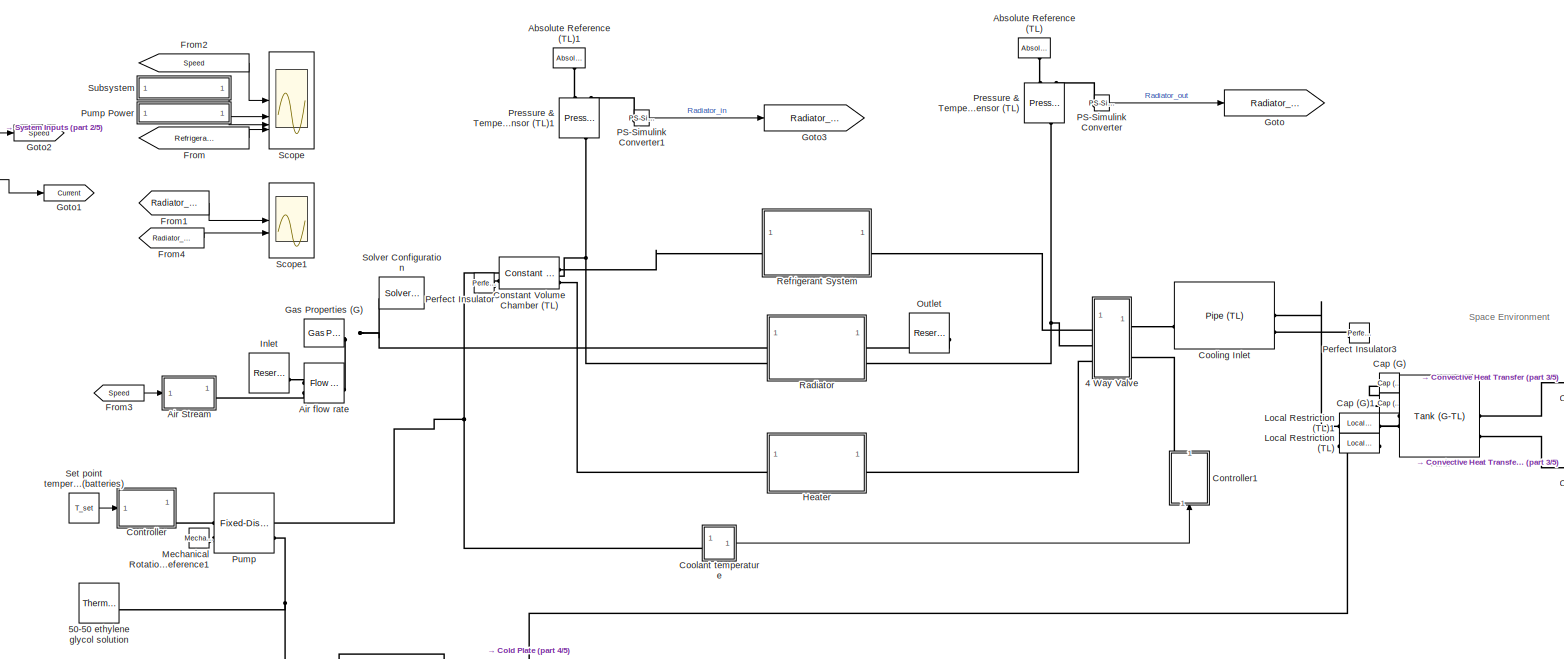
[diagram: root canvas - part 1/5, central region]
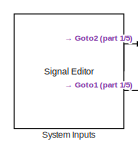
[diagram: root canvas - part 2/5, top left region]
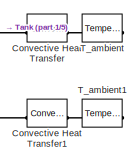
[diagram: root canvas - part 3/5, middle right region]
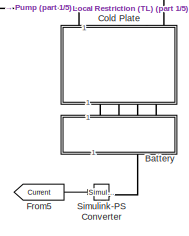
[diagram: root canvas - part 4/5, bottom center region]
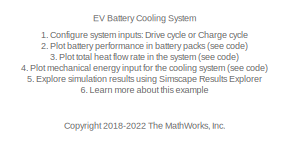
[diagram: root canvas - part 5/5, bottom left region]
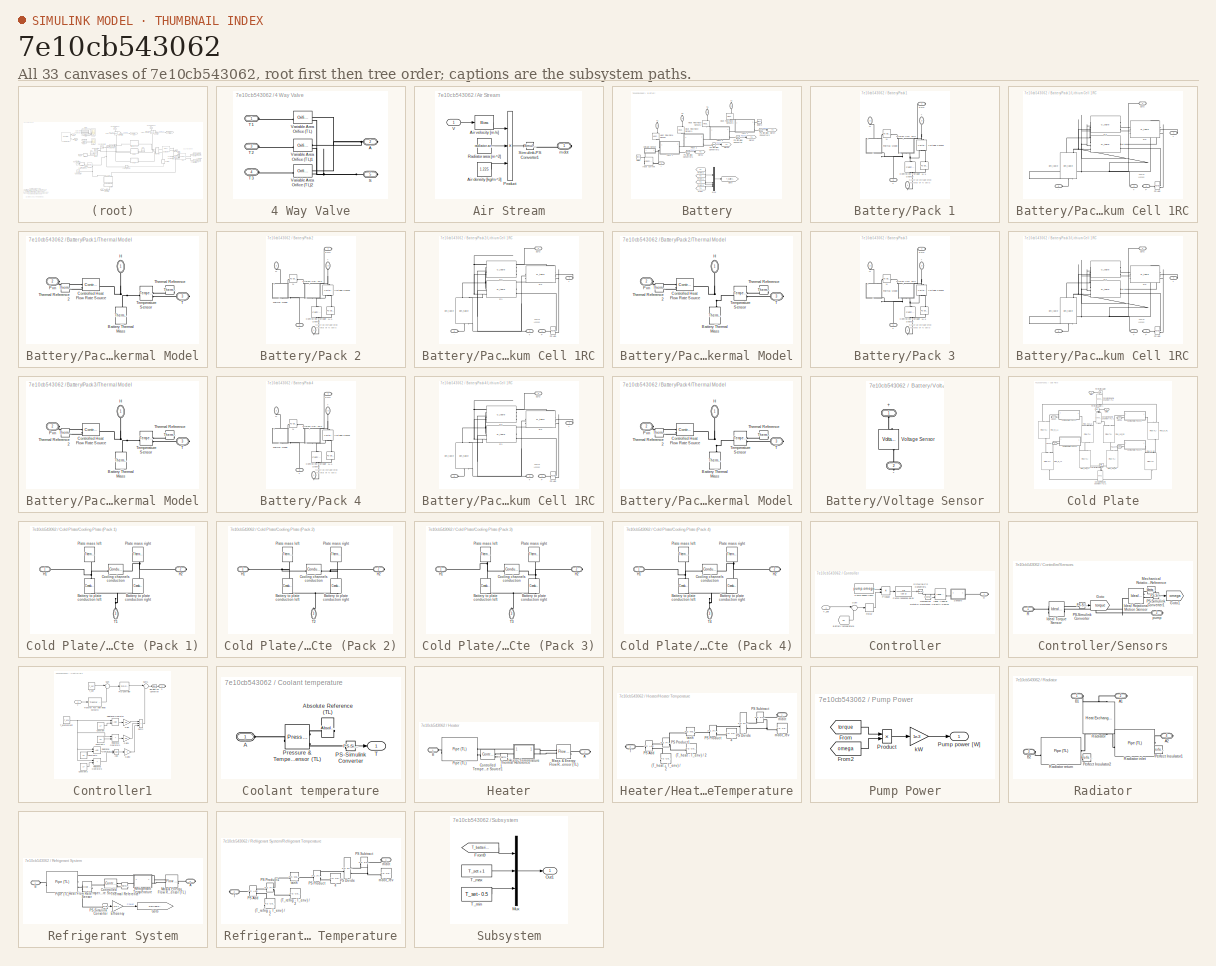
[diagram: thumbnail index - all 33 canvases of the model, root first then tree order]
MODEL slx_7e10cb543062
KIND model
CONFIG AbsTol = 1e-3
CONFIG EnableMultiTasking = off
CONFIG FixedStep = auto
CONFIG MaxStep = auto
CONFIG MinStep = auto
CONFIG PreLoadFcn = % Battery\nbattery.SOC_LUT = [0 0.1 0.25 0.5 0.75 0.9 1]';\nbattery.temperature_LUT = [5 20 40] + 273.15; %[K]\nbattery.capacity_LUT = [\n    28.0081   27.6250   27.6392]; %[A*hr] Battery capacity\nbattery.Em_LUT = [\n    3.4966    3.5057    3.5148\n    3.5519    3.5660    3.5653\n    3.6183    3.6337    3.6402\n    3.7066    3.7127    3.7213\n    3.9131    3.9259    3.9376\n    4.0748    4.0777    4.0821\n  ...<+2826ch>
CONFIG RelTol = 1e-3
CONFIG SampleTimeConstraint = Unconstrained
CONFIG SolverName = VariableStepAuto
CONFIG StartTime = 0.0
CONFIG StopTime = t_sim
BLOCK [SubSystem] 4 Way Valve
BLOCK [PMIOPort] 4 Way Valve/A
  Port = 2
  Side = Right
BLOCK [PMIOPort] 4 Way Valve/S
  Port = 5
  Side = Right
BLOCK [PMIOPort] 4 Way Valve/T1
  Side = Left
BLOCK [PMIOPort] 4 Way Valve/T2
  Port = 3
  Side = Left
BLOCK [PMIOPort] 4 Way Valve/T3
  Port = 4
  Side = Left
BLOCK [Reference] 4 Way Valve/Variable Area Orifice (TL)  REF=SimscapeFluids_lib/Thermal Liquid/Valves & Orifices/Orifice (TL)
  SourceBlock = SimscapeFluids_lib/Thermal Liquid/Valves & Orifices/Orifice (TL)
  SourceType = Orifice (TL)
BLOCK [Reference] 4 Way Valve/Variable Area Orifice (TL)1  REF=SimscapeFluids_lib/Thermal Liquid/Valves & Orifices/Orifice (TL)
  SourceBlock = SimscapeFluids_lib/Thermal Liquid/Valves & Orifices/Orifice (TL)
  SourceType = Orifice (TL)
BLOCK [Reference] 4 Way Valve/Variable Area Orifice (TL)2  REF=SimscapeFluids_lib/Thermal Liquid/Valves & Orifices/Orifice (TL)
  SourceBlock = SimscapeFluids_lib/Thermal Liquid/Valves & Orifices/Orifice (TL)
  SourceType = Orifice (TL)
BLOCK [Reference] 50-50 ethylene glycol solution  REF=SimscapeFluids_lib/Thermal Liquid/Utilities/Thermal Liquid
Properties (TL)
  SourceBlock = SimscapeFluids_lib/Thermal Liquid/Utilities/Thermal Liquid\nProperties (TL)
  SourceType = Thermal Liquid\nProperties (TL)
BLOCK [Reference] Absolute Reference (TL)  REF=fl_lib/Thermal Liquid/Elements/Absolute Reference
(TL)
  NameLocation = left
  SourceBlock = fl_lib/Thermal Liquid/Elements/Absolute Reference\n(TL)
  SourceType = Absolute Reference\n(TL)
BLOCK [Reference] Absolute Reference (TL)1  REF=fl_lib/Thermal Liquid/Elements/Absolute Reference
(TL)
  NameLocation = left
  SourceBlock = fl_lib/Thermal Liquid/Elements/Absolute Reference\n(TL)
  SourceType = Absolute Reference\n(TL)
BLOCK [SubSystem] Air Stream
BLOCK [Constant] Air Stream/Air density [kg//m^3]
  Value = 1.225
BLOCK [Bias] Air Stream/Air velocity [m//s]
  Bias = 5
  SaturateOnIntegerOverflow = off
BLOCK [Product] Air Stream/Product
  Inputs = 3
BLOCK [Constant] Air Stream/Radiator area [m^2]
  Value = radiator.area_air
BLOCK [Reference] Air Stream/Simulink-PS Converter1  REF=nesl_utility/Simulink-PS
Converter
  SourceBlock = nesl_utility/Simulink-PS\nConverter
  SourceType = Simulink-PS\nConverter
BLOCK [Inport] Air Stream/V
BLOCK [PMIOPort] Air Stream/mdot
  Side = Right
BLOCK [Reference] Air flow rate  REF=fl_lib/Gas/Sources/Flow Rate Source (G)
  SourceBlock = fl_lib/Gas/Sources/Flow Rate Source (G)
  SourceType = Flow Rate Source (G)
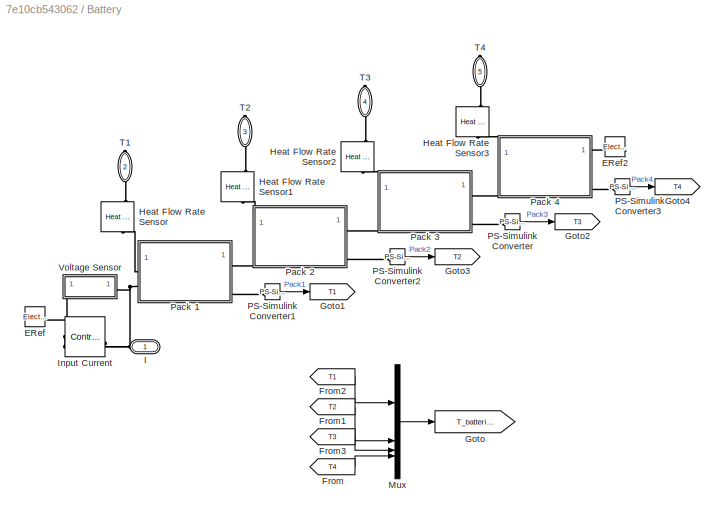
BLOCK [SubSystem] Battery
  NameLocation = right
BLOCK [Reference] Battery/ERef  REF=fl_lib/Electrical/Electrical Elements/Electrical Reference
  SourceBlock = fl_lib/Electrical/Electrical Elements/Electrical Reference
  SourceType = Electrical Reference
BLOCK [Reference] Battery/ERef2  REF=fl_lib/Electrical/Electrical Elements/Electrical Reference
  NameLocation = top
  SourceBlock = fl_lib/Electrical/Electrical Elements/Electrical Reference
  SourceType = Electrical Reference
BLOCK [From] Battery/From
  GotoTag = T4
  TagVisibility = global
BLOCK [From] Battery/From1
  GotoTag = T2
  TagVisibility = global
BLOCK [From] Battery/From2
  GotoTag = T1
  TagVisibility = global
BLOCK [From] Battery/From3
  GotoTag = T3
  TagVisibility = global
BLOCK [Goto] Battery/Goto
  GotoTag = T_batteries
  TagVisibility = global
BLOCK [Goto] Battery/Goto1
  GotoTag = T1
  TagVisibility = global
BLOCK [Goto] Battery/Goto2
  GotoTag = T3
  TagVisibility = global
BLOCK [Goto] Battery/Goto3
  GotoTag = T2
  TagVisibility = global
BLOCK [Goto] Battery/Goto4
  GotoTag = T4
  TagVisibility = global
BLOCK [Reference] Battery/Heat Flow Rate Sensor  REF=fl_lib/Thermal/Thermal Sensors/Heat Flow Rate
Sensor
  NameLocation = left
  SourceBlock = fl_lib/Thermal/Thermal Sensors/Heat Flow Rate\nSensor
  SourceType = Heat Flow Rate\nSensor
BLOCK [Reference] Battery/Heat Flow Rate Sensor1  REF=fl_lib/Thermal/Thermal Sensors/Heat Flow Rate
Sensor
  NameLocation = left
  SourceBlock = fl_lib/Thermal/Thermal Sensors/Heat Flow Rate\nSensor
  SourceType = Heat Flow Rate\nSensor
BLOCK [Reference] Battery/Heat Flow Rate Sensor2  REF=fl_lib/Thermal/Thermal Sensors/Heat Flow Rate
Sensor
  NameLocation = left
  SourceBlock = fl_lib/Thermal/Thermal Sensors/Heat Flow Rate\nSensor
  SourceType = Heat Flow Rate\nSensor
BLOCK [Reference] Battery/Heat Flow Rate Sensor3  REF=fl_lib/Thermal/Thermal Sensors/Heat Flow Rate
Sensor
  NameLocation = left
  SourceBlock = fl_lib/Thermal/Thermal Sensors/Heat Flow Rate\nSensor
  SourceType = Heat Flow Rate\nSensor
BLOCK [PMIOPort] Battery/I
  NameLocation = top
  Side = Left
BLOCK [Reference] Battery/Input Current  REF=fl_lib/Electrical/Electrical Sources/Controlled Current
Source
  SourceBlock = fl_lib/Electrical/Electrical Sources/Controlled Current\nSource
  SourceType = Controlled Current\nSource
BLOCK [Mux] Battery/Mux
  DisplayOption = bar
BLOCK [Reference] Battery/PS-Simulink Converter  REF=nesl_utility/PS-Simulink
Converter
  SourceBlock = nesl_utility/PS-Simulink\nConverter
  SourceType = PS-Simulink\nConverter
BLOCK [Reference] Battery/PS-Simulink Converter1  REF=nesl_utility/PS-Simulink
Converter
  SourceBlock = nesl_utility/PS-Simulink\nConverter
  SourceType = PS-Simulink\nConverter
BLOCK [Reference] Battery/PS-Simulink Converter2  REF=nesl_utility/PS-Simulink
Converter
  SourceBlock = nesl_utility/PS-Simulink\nConverter
  SourceType = PS-Simulink\nConverter
BLOCK [Reference] Battery/PS-Simulink Converter3  REF=nesl_utility/PS-Simulink
Converter
  SourceBlock = nesl_utility/PS-Simulink\nConverter
  SourceType = PS-Simulink\nConverter
BLOCK [SubSystem] Battery/Pack 1
  NameLocation = top
  Tag = PublishSubsystem
BLOCK [PMIOPort] Battery/Pack 1/+
  NameLocation = left
  Port = 3
  Side = Left
  Tag = PMCPort
BLOCK [PMIOPort] Battery/Pack 1/-
  NameLocation = left
  Side = Right
  Tag = PMCPort
BLOCK [Reference] Battery/Pack 1/Controlled Voltage Source  REF=fl_lib/Electrical/Electrical Sources/Controlled Voltage
Source
  NameLocation = left
  SourceBlock = fl_lib/Electrical/Electrical Sources/Controlled Voltage\nSource
  SourceType = Controlled Voltage\nSource
BLOCK [PMIOPort] Battery/Pack 1/H
  NameLocation = left
  Port = 2
  Side = Left
  Tag = PMCPort
BLOCK [SubSystem] Battery/Pack 1/Lithium Cell 1RC
  NameLocation = left
  Tag = PublishSubsystem
BLOCK [PMIOPort] Battery/Pack 1/Lithium Cell 1RC/+
  Port = 4
  Side = Right
BLOCK [PMIOPort] Battery/Pack 1/Lithium Cell 1RC/-
  NameLocation = top
  Port = 5
  Side = Left
BLOCK [Reference] Battery/Pack 1/Lithium Cell 1RC/C1  REF=LiBatteryElements_lib/C_table
  NameLocation = top
  SourceBlock = LiBatteryElements_lib/C_table
  SourceType = C_table
BLOCK [Reference] Battery/Pack 1/Lithium Cell 1RC/Em_table  REF=LiBatteryElements_lib/Em_table
  NameLocation = right
  SourceBlock = LiBatteryElements_lib/Em_table
  SourceType = Em_table
BLOCK [PMIOPort] Battery/Pack 1/Lithium Cell 1RC/P
  Side = Right
BLOCK [Reference] Battery/Pack 1/Lithium Cell 1RC/PS Add  REF=fl_lib/Physical Signals/Functions/PS Add
  SourceBlock = fl_lib/Physical Signals/Functions/PS Add
  SourceType = PS Add
BLOCK [Reference] Battery/Pack 1/Lithium Cell 1RC/R0  REF=LiBatteryElements_lib/R_table
  SourceBlock = LiBatteryElements_lib/R_table
  SourceType = R_table
BLOCK [Reference] Battery/Pack 1/Lithium Cell 1RC/R1  REF=LiBatteryElements_lib/R_table
  SourceBlock = LiBatteryElements_lib/R_table
  SourceType = R_table
BLOCK [PMIOPort] Battery/Pack 1/Lithium Cell 1RC/SOC
  NameLocation = top
  Port = 3
  Side = Right
BLOCK [PMIOPort] Battery/Pack 1/Lithium Cell 1RC/T
  Port = 2
  Side = Left
BLOCK [Reference] Battery/Pack 1/N  REF=fl_lib/Physical Signals/Functions/PS Gain
  NameLocation = top
  SourceBlock = fl_lib/Physical Signals/Functions/PS Gain
  SourceType = PS Gain
BLOCK [Reference] Battery/Pack 1/N-1  REF=fl_lib/Physical Signals/Functions/PS Gain
  NameLocation = right
  SourceBlock = fl_lib/Physical Signals/Functions/PS Gain
  SourceType = PS Gain
BLOCK [PMIOPort] Battery/Pack 1/SOC
  NameLocation = top
  Port = 4
  Side = Right
BLOCK [PMIOPort] Battery/Pack 1/T
  NameLocation = top
  Port = 5
  Side = Right
BLOCK [SubSystem] Battery/Pack 1/Thermal Model
  NameLocation = left
BLOCK [Reference] Battery/Pack 1/Thermal Model/Battery Thermal Mass  REF=fl_lib/Thermal/Thermal Elements/Thermal Mass
  NameLocation = right
  SourceBlock = fl_lib/Thermal/Thermal Elements/Thermal Mass
  SourceType = Thermal Mass
BLOCK [Reference] Battery/Pack 1/Thermal Model/Controlled Heat Flow Rate Source  REF=fl_lib/Thermal/Thermal Sources/Controlled Heat Flow
Rate Source
  SourceBlock = fl_lib/Thermal/Thermal Sources/Controlled Heat Flow\nRate Source
  SourceType = Controlled Heat Flow\nRate Source
BLOCK [PMIOPort] Battery/Pack 1/Thermal Model/H
  NameLocation = left
  Side = Left
  Tag = PMCPort
BLOCK [PMIOPort] Battery/Pack 1/Thermal Model/Pxn
  NameLocation = top
  Port = 2
  Side = Left
  Tag = PMCPort
BLOCK [PMIOPort] Battery/Pack 1/Thermal Model/T
  Port = 3
  Side = Right
  Tag = PMCPort
BLOCK [Reference] Battery/Pack 1/Thermal Model/Temperature Sensor  REF=fl_lib/Thermal/Thermal Sensors/Temperature Sensor
  SourceBlock = fl_lib/Thermal/Thermal Sensors/Temperature Sensor
  SourceType = Temperature Sensor
BLOCK [Reference] Battery/Pack 1/Thermal Model/Thermal Reference  REF=fl_lib/Thermal/Thermal Elements/Thermal Reference
  NameLocation = top
  SourceBlock = fl_lib/Thermal/Thermal Elements/Thermal Reference
  SourceType = Thermal Reference
BLOCK [Reference] Battery/Pack 1/Thermal Model/Thermal Reference2  REF=fl_lib/Thermal/Thermal Elements/Thermal Reference
  SourceBlock = fl_lib/Thermal/Thermal Elements/Thermal Reference
  SourceType = Thermal Reference
BLOCK [Reference] Battery/Pack 1/Voltage Sensor  REF=fl_lib/Electrical/Electrical Sensors/Voltage Sensor
  NameLocation = right
  SourceBlock = fl_lib/Electrical/Electrical Sensors/Voltage Sensor
  SourceType = Voltage Sensor
BLOCK [SubSystem] Battery/Pack 2
  NameLocation = top
  Tag = PublishSubsystem
BLOCK [PMIOPort] Battery/Pack 2/+
  NameLocation = left
  Port = 3
  Side = Left
  Tag = PMCPort
BLOCK [PMIOPort] Battery/Pack 2/-
  NameLocation = left
  Side = Right
  Tag = PMCPort
BLOCK [Reference] Battery/Pack 2/Controlled Voltage Source  REF=fl_lib/Electrical/Electrical Sources/Controlled Voltage
Source
  NameLocation = left
  SourceBlock = fl_lib/Electrical/Electrical Sources/Controlled Voltage\nSource
  SourceType = Controlled Voltage\nSource
BLOCK [PMIOPort] Battery/Pack 2/H
  NameLocation = left
  Port = 2
  Side = Left
  Tag = PMCPort
BLOCK [SubSystem] Battery/Pack 2/Lithium Cell 1RC
  NameLocation = left
  Tag = PublishSubsystem
BLOCK [PMIOPort] Battery/Pack 2/Lithium Cell 1RC/+
  Port = 4
  Side = Right
BLOCK [PMIOPort] Battery/Pack 2/Lithium Cell 1RC/-
  NameLocation = top
  Port = 5
  Side = Left
BLOCK [Reference] Battery/Pack 2/Lithium Cell 1RC/C1  REF=LiBatteryElements_lib/C_table
  NameLocation = top
  SourceBlock = LiBatteryElements_lib/C_table
  SourceType = C_table
BLOCK [Reference] Battery/Pack 2/Lithium Cell 1RC/Em_table  REF=LiBatteryElements_lib/Em_table
  NameLocation = right
  SourceBlock = LiBatteryElements_lib/Em_table
  SourceType = Em_table
BLOCK [PMIOPort] Battery/Pack 2/Lithium Cell 1RC/P
  Side = Right
BLOCK [Reference] Battery/Pack 2/Lithium Cell 1RC/PS Add  REF=fl_lib/Physical Signals/Functions/PS Add
  SourceBlock = fl_lib/Physical Signals/Functions/PS Add
  SourceType = PS Add
BLOCK [Reference] Battery/Pack 2/Lithium Cell 1RC/R0  REF=LiBatteryElements_lib/R_table
  SourceBlock = LiBatteryElements_lib/R_table
  SourceType = R_table
BLOCK [Reference] Battery/Pack 2/Lithium Cell 1RC/R1  REF=LiBatteryElements_lib/R_table
  SourceBlock = LiBatteryElements_lib/R_table
  SourceType = R_table
BLOCK [PMIOPort] Battery/Pack 2/Lithium Cell 1RC/SOC
  NameLocation = top
  Port = 3
  Side = Right
BLOCK [PMIOPort] Battery/Pack 2/Lithium Cell 1RC/T
  Port = 2
  Side = Left
BLOCK [Reference] Battery/Pack 2/N  REF=fl_lib/Physical Signals/Functions/PS Gain
  NameLocation = top
  SourceBlock = fl_lib/Physical Signals/Functions/PS Gain
  SourceType = PS Gain
BLOCK [Reference] Battery/Pack 2/N-1  REF=fl_lib/Physical Signals/Functions/PS Gain
  NameLocation = right
  SourceBlock = fl_lib/Physical Signals/Functions/PS Gain
  SourceType = PS Gain
BLOCK [PMIOPort] Battery/Pack 2/SOC
  NameLocation = top
  Port = 4
  Side = Right
BLOCK [PMIOPort] Battery/Pack 2/T
  NameLocation = top
  Port = 5
  Side = Right
BLOCK [SubSystem] Battery/Pack 2/Thermal Model
  NameLocation = left
BLOCK [Reference] Battery/Pack 2/Thermal Model/Battery Thermal Mass  REF=fl_lib/Thermal/Thermal Elements/Thermal Mass
  NameLocation = right
  SourceBlock = fl_lib/Thermal/Thermal Elements/Thermal Mass
  SourceType = Thermal Mass
BLOCK [Reference] Battery/Pack 2/Thermal Model/Controlled Heat Flow Rate Source  REF=fl_lib/Thermal/Thermal Sources/Controlled Heat Flow
Rate Source
  SourceBlock = fl_lib/Thermal/Thermal Sources/Controlled Heat Flow\nRate Source
  SourceType = Controlled Heat Flow\nRate Source
BLOCK [PMIOPort] Battery/Pack 2/Thermal Model/H
  NameLocation = left
  Side = Left
  Tag = PMCPort
BLOCK [PMIOPort] Battery/Pack 2/Thermal Model/Pxn
  NameLocation = top
  Port = 2
  Side = Left
  Tag = PMCPort
BLOCK [PMIOPort] Battery/Pack 2/Thermal Model/T
  Port = 3
  Side = Right
  Tag = PMCPort
BLOCK [Reference] Battery/Pack 2/Thermal Model/Temperature Sensor  REF=fl_lib/Thermal/Thermal Sensors/Temperature Sensor
  SourceBlock = fl_lib/Thermal/Thermal Sensors/Temperature Sensor
  SourceType = Temperature Sensor
BLOCK [Reference] Battery/Pack 2/Thermal Model/Thermal Reference  REF=fl_lib/Thermal/Thermal Elements/Thermal Reference
  NameLocation = top
  SourceBlock = fl_lib/Thermal/Thermal Elements/Thermal Reference
  SourceType = Thermal Reference
BLOCK [Reference] Battery/Pack 2/Thermal Model/Thermal Reference2  REF=fl_lib/Thermal/Thermal Elements/Thermal Reference
  SourceBlock = fl_lib/Thermal/Thermal Elements/Thermal Reference
  SourceType = Thermal Reference
BLOCK [Reference] Battery/Pack 2/Voltage Sensor  REF=fl_lib/Electrical/Electrical Sensors/Voltage Sensor
  NameLocation = right
  SourceBlock = fl_lib/Electrical/Electrical Sensors/Voltage Sensor
  SourceType = Voltage Sensor
BLOCK [SubSystem] Battery/Pack 3
  NameLocation = top
  Tag = PublishSubsystem
BLOCK [PMIOPort] Battery/Pack 3/+
  NameLocation = left
  Port = 3
  Side = Left
  Tag = PMCPort
BLOCK [PMIOPort] Battery/Pack 3/-
  NameLocation = left
  Side = Right
  Tag = PMCPort
BLOCK [Reference] Battery/Pack 3/Controlled Voltage Source  REF=fl_lib/Electrical/Electrical Sources/Controlled Voltage
Source
  NameLocation = left
  SourceBlock = fl_lib/Electrical/Electrical Sources/Controlled Voltage\nSource
  SourceType = Controlled Voltage\nSource
BLOCK [PMIOPort] Battery/Pack 3/H
  NameLocation = left
  Port = 2
  Side = Left
  Tag = PMCPort
BLOCK [SubSystem] Battery/Pack 3/Lithium Cell 1RC
  NameLocation = left
  Tag = PublishSubsystem
BLOCK [PMIOPort] Battery/Pack 3/Lithium Cell 1RC/+
  Port = 4
  Side = Right
BLOCK [PMIOPort] Battery/Pack 3/Lithium Cell 1RC/-
  NameLocation = top
  Port = 5
  Side = Left
BLOCK [Reference] Battery/Pack 3/Lithium Cell 1RC/C1  REF=LiBatteryElements_lib/C_table
  NameLocation = top
  SourceBlock = LiBatteryElements_lib/C_table
  SourceType = C_table
BLOCK [Reference] Battery/Pack 3/Lithium Cell 1RC/Em_table  REF=LiBatteryElements_lib/Em_table
  NameLocation = right
  SourceBlock = LiBatteryElements_lib/Em_table
  SourceType = Em_table
BLOCK [PMIOPort] Battery/Pack 3/Lithium Cell 1RC/P
  Side = Right
BLOCK [Reference] Battery/Pack 3/Lithium Cell 1RC/PS Add  REF=fl_lib/Physical Signals/Functions/PS Add
  SourceBlock = fl_lib/Physical Signals/Functions/PS Add
  SourceType = PS Add
BLOCK [Reference] Battery/Pack 3/Lithium Cell 1RC/R0  REF=LiBatteryElements_lib/R_table
  SourceBlock = LiBatteryElements_lib/R_table
  SourceType = R_table
BLOCK [Reference] Battery/Pack 3/Lithium Cell 1RC/R1  REF=LiBatteryElements_lib/R_table
  SourceBlock = LiBatteryElements_lib/R_table
  SourceType = R_table
BLOCK [PMIOPort] Battery/Pack 3/Lithium Cell 1RC/SOC
  NameLocation = top
  Port = 3
  Side = Right
BLOCK [PMIOPort] Battery/Pack 3/Lithium Cell 1RC/T
  Port = 2
  Side = Left
BLOCK [Reference] Battery/Pack 3/N  REF=fl_lib/Physical Signals/Functions/PS Gain
  NameLocation = top
  SourceBlock = fl_lib/Physical Signals/Functions/PS Gain
  SourceType = PS Gain
BLOCK [Reference] Battery/Pack 3/N-1  REF=fl_lib/Physical Signals/Functions/PS Gain
  NameLocation = right
  SourceBlock = fl_lib/Physical Signals/Functions/PS Gain
  SourceType = PS Gain
BLOCK [PMIOPort] Battery/Pack 3/SOC
  NameLocation = top
  Port = 4
  Side = Right
BLOCK [PMIOPort] Battery/Pack 3/T
  NameLocation = top
  Port = 5
  Side = Right
BLOCK [SubSystem] Battery/Pack 3/Thermal Model
  NameLocation = left
BLOCK [Reference] Battery/Pack 3/Thermal Model/Battery Thermal Mass  REF=fl_lib/Thermal/Thermal Elements/Thermal Mass
  NameLocation = right
  SourceBlock = fl_lib/Thermal/Thermal Elements/Thermal Mass
  SourceType = Thermal Mass
BLOCK [Reference] Battery/Pack 3/Thermal Model/Controlled Heat Flow Rate Source  REF=fl_lib/Thermal/Thermal Sources/Controlled Heat Flow
Rate Source
  SourceBlock = fl_lib/Thermal/Thermal Sources/Controlled Heat Flow\nRate Source
  SourceType = Controlled Heat Flow\nRate Source
BLOCK [PMIOPort] Battery/Pack 3/Thermal Model/H
  NameLocation = left
  Side = Left
  Tag = PMCPort
BLOCK [PMIOPort] Battery/Pack 3/Thermal Model/Pxn
  NameLocation = top
  Port = 2
  Side = Left
  Tag = PMCPort
BLOCK [PMIOPort] Battery/Pack 3/Thermal Model/T
  Port = 3
  Side = Right
  Tag = PMCPort
BLOCK [Reference] Battery/Pack 3/Thermal Model/Temperature Sensor  REF=fl_lib/Thermal/Thermal Sensors/Temperature Sensor
  SourceBlock = fl_lib/Thermal/Thermal Sensors/Temperature Sensor
  SourceType = Temperature Sensor
BLOCK [Reference] Battery/Pack 3/Thermal Model/Thermal Reference  REF=fl_lib/Thermal/Thermal Elements/Thermal Reference
  NameLocation = top
  SourceBlock = fl_lib/Thermal/Thermal Elements/Thermal Reference
  SourceType = Thermal Reference
BLOCK [Reference] Battery/Pack 3/Thermal Model/Thermal Reference2  REF=fl_lib/Thermal/Thermal Elements/Thermal Reference
  SourceBlock = fl_lib/Thermal/Thermal Elements/Thermal Reference
  SourceType = Thermal Reference
BLOCK [Reference] Battery/Pack 3/Voltage Sensor  REF=fl_lib/Electrical/Electrical Sensors/Voltage Sensor
  NameLocation = right
  SourceBlock = fl_lib/Electrical/Electrical Sensors/Voltage Sensor
  SourceType = Voltage Sensor
BLOCK [SubSystem] Battery/Pack 4
  NameLocation = top
  Tag = PublishSubsystem
BLOCK [PMIOPort] Battery/Pack 4/+
  NameLocation = left
  Port = 3
  Side = Left
  Tag = PMCPort
BLOCK [PMIOPort] Battery/Pack 4/-
  NameLocation = left
  Side = Right
  Tag = PMCPort
BLOCK [Reference] Battery/Pack 4/Controlled Voltage Source  REF=fl_lib/Electrical/Electrical Sources/Controlled Voltage
Source
  NameLocation = left
  SourceBlock = fl_lib/Electrical/Electrical Sources/Controlled Voltage\nSource
  SourceType = Controlled Voltage\nSource
BLOCK [PMIOPort] Battery/Pack 4/H
  NameLocation = left
  Port = 2
  Side = Left
  Tag = PMCPort
BLOCK [SubSystem] Battery/Pack 4/Lithium Cell 1RC
  NameLocation = left
  Tag = PublishSubsystem
BLOCK [PMIOPort] Battery/Pack 4/Lithium Cell 1RC/+
  Port = 4
  Side = Right
BLOCK [PMIOPort] Battery/Pack 4/Lithium Cell 1RC/-
  NameLocation = top
  Port = 5
  Side = Left
BLOCK [Reference] Battery/Pack 4/Lithium Cell 1RC/C1  REF=LiBatteryElements_lib/C_table
  NameLocation = top
  SourceBlock = LiBatteryElements_lib/C_table
  SourceType = C_table
BLOCK [Reference] Battery/Pack 4/Lithium Cell 1RC/Em_table  REF=LiBatteryElements_lib/Em_table
  NameLocation = right
  SourceBlock = LiBatteryElements_lib/Em_table
  SourceType = Em_table
BLOCK [PMIOPort] Battery/Pack 4/Lithium Cell 1RC/P
  Side = Right
BLOCK [Reference] Battery/Pack 4/Lithium Cell 1RC/PS Add  REF=fl_lib/Physical Signals/Functions/PS Add
  SourceBlock = fl_lib/Physical Signals/Functions/PS Add
  SourceType = PS Add
BLOCK [Reference] Battery/Pack 4/Lithium Cell 1RC/R0  REF=LiBatteryElements_lib/R_table
  SourceBlock = LiBatteryElements_lib/R_table
  SourceType = R_table
BLOCK [Reference] Battery/Pack 4/Lithium Cell 1RC/R1  REF=LiBatteryElements_lib/R_table
  SourceBlock = LiBatteryElements_lib/R_table
  SourceType = R_table
BLOCK [PMIOPort] Battery/Pack 4/Lithium Cell 1RC/SOC
  NameLocation = top
  Port = 3
  Side = Right
BLOCK [PMIOPort] Battery/Pack 4/Lithium Cell 1RC/T
  Port = 2
  Side = Left
BLOCK [Reference] Battery/Pack 4/N  REF=fl_lib/Physical Signals/Functions/PS Gain
  NameLocation = top
  SourceBlock = fl_lib/Physical Signals/Functions/PS Gain
  SourceType = PS Gain
BLOCK [Reference] Battery/Pack 4/N-1  REF=fl_lib/Physical Signals/Functions/PS Gain
  NameLocation = right
  SourceBlock = fl_lib/Physical Signals/Functions/PS Gain
  SourceType = PS Gain
BLOCK [PMIOPort] Battery/Pack 4/SOC
  NameLocation = top
  Port = 4
  Side = Right
BLOCK [PMIOPort] Battery/Pack 4/T
  NameLocation = top
  Port = 5
  Side = Right
BLOCK [SubSystem] Battery/Pack 4/Thermal Model
  NameLocation = left
BLOCK [Reference] Battery/Pack 4/Thermal Model/Battery Thermal Mass  REF=fl_lib/Thermal/Thermal Elements/Thermal Mass
  NameLocation = right
  SourceBlock = fl_lib/Thermal/Thermal Elements/Thermal Mass
  SourceType = Thermal Mass
BLOCK [Reference] Battery/Pack 4/Thermal Model/Controlled Heat Flow Rate Source  REF=fl_lib/Thermal/Thermal Sources/Controlled Heat Flow
Rate Source
  SourceBlock = fl_lib/Thermal/Thermal Sources/Controlled Heat Flow\nRate Source
  SourceType = Controlled Heat Flow\nRate Source
BLOCK [PMIOPort] Battery/Pack 4/Thermal Model/H
  NameLocation = left
  Side = Left
  Tag = PMCPort
BLOCK [PMIOPort] Battery/Pack 4/Thermal Model/Pxn
  NameLocation = top
  Port = 2
  Side = Left
  Tag = PMCPort
BLOCK [PMIOPort] Battery/Pack 4/Thermal Model/T
  Port = 3
  Side = Right
  Tag = PMCPort
BLOCK [Reference] Battery/Pack 4/Thermal Model/Temperature Sensor  REF=fl_lib/Thermal/Thermal Sensors/Temperature Sensor
  SourceBlock = fl_lib/Thermal/Thermal Sensors/Temperature Sensor
  SourceType = Temperature Sensor
BLOCK [Reference] Battery/Pack 4/Thermal Model/Thermal Reference  REF=fl_lib/Thermal/Thermal Elements/Thermal Reference
  NameLocation = top
  SourceBlock = fl_lib/Thermal/Thermal Elements/Thermal Reference
  SourceType = Thermal Reference
BLOCK [Reference] Battery/Pack 4/Thermal Model/Thermal Reference2  REF=fl_lib/Thermal/Thermal Elements/Thermal Reference
  SourceBlock = fl_lib/Thermal/Thermal Elements/Thermal Reference
  SourceType = Thermal Reference
BLOCK [Reference] Battery/Pack 4/Voltage Sensor  REF=fl_lib/Electrical/Electrical Sensors/Voltage Sensor
  NameLocation = right
  SourceBlock = fl_lib/Electrical/Electrical Sensors/Voltage Sensor
  SourceType = Voltage Sensor
BLOCK [PMIOPort] Battery/T1
  NameLocation = left
  Port = 2
  Side = Right
BLOCK [PMIOPort] Battery/T2
  NameLocation = left
  Port = 3
  Side = Right
BLOCK [PMIOPort] Battery/T3
  NameLocation = left
  Port = 4
  Side = Right
BLOCK [PMIOPort] Battery/T4
  NameLocation = left
  Port = 5
  Side = Right
BLOCK [SubSystem] Battery/Voltage Sensor
  NameLocation = top
BLOCK [PMIOPort] Battery/Voltage Sensor/+
  NameLocation = right
  Side = Left
BLOCK [PMIOPort] Battery/Voltage Sensor/-
  NameLocation = right
  Port = 2
  Side = Right
BLOCK [Reference] Battery/Voltage Sensor/Voltage Sensor  REF=fl_lib/Electrical/Electrical Sensors/Voltage Sensor
  NameLocation = right
  SourceBlock = fl_lib/Electrical/Electrical Sensors/Voltage Sensor
  SourceType = Voltage Sensor
BLOCK [Reference] Cap (G)  REF=fl_lib/Gas/Elements/Cap (G)
  NameLocation = top
  SourceBlock = fl_lib/Gas/Elements/Cap (G)
  SourceType = Cap (G)
BLOCK [Reference] Cap (G)1  REF=fl_lib/Gas/Elements/Cap (G)
  NameLocation = top
  SourceBlock = fl_lib/Gas/Elements/Cap (G)
  SourceType = Cap (G)
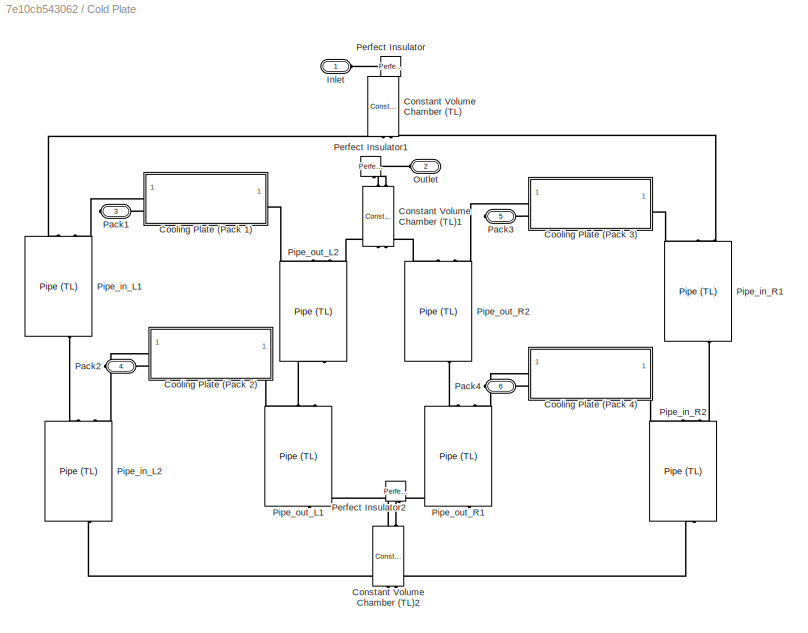
BLOCK [SubSystem] Cold Plate
  NameLocation = right
BLOCK [Reference] Cold Plate/Constant Volume Chamber (TL)  REF=fl_lib/Thermal Liquid/Elements/Constant Volume
Chamber (TL)
  NameLocation = right
  SourceBlock = fl_lib/Thermal Liquid/Elements/Constant Volume\nChamber (TL)
  SourceType = Constant Volume\nChamber (TL)
BLOCK [Reference] Cold Plate/Constant Volume Chamber (TL)1  REF=fl_lib/Thermal Liquid/Elements/Constant Volume
Chamber (TL)
  NameLocation = right
  SourceBlock = fl_lib/Thermal Liquid/Elements/Constant Volume\nChamber (TL)
  SourceType = Constant Volume\nChamber (TL)
BLOCK [Reference] Cold Plate/Constant Volume Chamber (TL)2  REF=fl_lib/Thermal Liquid/Elements/Constant Volume
Chamber (TL)
  NameLocation = right
  SourceBlock = fl_lib/Thermal Liquid/Elements/Constant Volume\nChamber (TL)
  SourceType = Constant Volume\nChamber (TL)
BLOCK [SubSystem] Cold Plate/Cooling Plate (Pack 1)
BLOCK [Reference] Cold Plate/Cooling Plate (Pack 1)/Battery to plate conduction left  REF=fl_lib/Thermal/Thermal Elements/Conductive Heat
Transfer
  NameLocation = left
  SourceBlock = fl_lib/Thermal/Thermal Elements/Conductive Heat\nTransfer
  SourceType = Conductive Heat\nTransfer
BLOCK [Reference] Cold Plate/Cooling Plate (Pack 1)/Battery to plate conduction right   REF=fl_lib/Thermal/Thermal Elements/Conductive Heat
Transfer
  NameLocation = right
  SourceBlock = fl_lib/Thermal/Thermal Elements/Conductive Heat\nTransfer
  SourceType = Conductive Heat\nTransfer
BLOCK [Reference] Cold Plate/Cooling Plate (Pack 1)/Cooling channels conduction  REF=fl_lib/Thermal/Thermal Elements/Conductive Heat
Transfer
  SourceBlock = fl_lib/Thermal/Thermal Elements/Conductive Heat\nTransfer
  SourceType = Conductive Heat\nTransfer
BLOCK [PMIOPort] Cold Plate/Cooling Plate (Pack 1)/H1
  Side = Left
BLOCK [PMIOPort] Cold Plate/Cooling Plate (Pack 1)/H2
  NameLocation = top
  Port = 2
  Side = Right
BLOCK [Reference] Cold Plate/Cooling Plate (Pack 1)/Plate mass left   REF=fl_lib/Thermal/Thermal Elements/Thermal Mass
  NameLocation = left
  SourceBlock = fl_lib/Thermal/Thermal Elements/Thermal Mass
  SourceType = Thermal Mass
BLOCK [Reference] Cold Plate/Cooling Plate (Pack 1)/Plate mass right  REF=fl_lib/Thermal/Thermal Elements/Thermal Mass
  NameLocation = right
  SourceBlock = fl_lib/Thermal/Thermal Elements/Thermal Mass
  SourceType = Thermal Mass
BLOCK [PMIOPort] Cold Plate/Cooling Plate (Pack 1)/T1
  NameLocation = right
  Port = 3
  Side = Left
BLOCK [SubSystem] Cold Plate/Cooling Plate (Pack 2)
BLOCK [Reference] Cold Plate/Cooling Plate (Pack 2)/Battery to plate conduction left  REF=fl_lib/Thermal/Thermal Elements/Conductive Heat
Transfer
  NameLocation = left
  SourceBlock = fl_lib/Thermal/Thermal Elements/Conductive Heat\nTransfer
  SourceType = Conductive Heat\nTransfer
BLOCK [Reference] Cold Plate/Cooling Plate (Pack 2)/Battery to plate conduction right   REF=fl_lib/Thermal/Thermal Elements/Conductive Heat
Transfer
  NameLocation = right
  SourceBlock = fl_lib/Thermal/Thermal Elements/Conductive Heat\nTransfer
  SourceType = Conductive Heat\nTransfer
BLOCK [Reference] Cold Plate/Cooling Plate (Pack 2)/Cooling channels conduction  REF=fl_lib/Thermal/Thermal Elements/Conductive Heat
Transfer
  SourceBlock = fl_lib/Thermal/Thermal Elements/Conductive Heat\nTransfer
  SourceType = Conductive Heat\nTransfer
BLOCK [PMIOPort] Cold Plate/Cooling Plate (Pack 2)/H1
  Side = Left
BLOCK [PMIOPort] Cold Plate/Cooling Plate (Pack 2)/H2
  NameLocation = top
  Port = 2
  Side = Right
BLOCK [Reference] Cold Plate/Cooling Plate (Pack 2)/Plate mass left   REF=fl_lib/Thermal/Thermal Elements/Thermal Mass
  NameLocation = left
  SourceBlock = fl_lib/Thermal/Thermal Elements/Thermal Mass
  SourceType = Thermal Mass
BLOCK [Reference] Cold Plate/Cooling Plate (Pack 2)/Plate mass right  REF=fl_lib/Thermal/Thermal Elements/Thermal Mass
  NameLocation = right
  SourceBlock = fl_lib/Thermal/Thermal Elements/Thermal Mass
  SourceType = Thermal Mass
BLOCK [PMIOPort] Cold Plate/Cooling Plate (Pack 2)/T2
  NameLocation = right
  Port = 3
  Side = Left
BLOCK [SubSystem] Cold Plate/Cooling Plate (Pack 3)
BLOCK [Reference] Cold Plate/Cooling Plate (Pack 3)/Battery to plate conduction left  REF=fl_lib/Thermal/Thermal Elements/Conductive Heat
Transfer
  NameLocation = left
  SourceBlock = fl_lib/Thermal/Thermal Elements/Conductive Heat\nTransfer
  SourceType = Conductive Heat\nTransfer
BLOCK [Reference] Cold Plate/Cooling Plate (Pack 3)/Battery to plate conduction right   REF=fl_lib/Thermal/Thermal Elements/Conductive Heat
Transfer
  NameLocation = right
  SourceBlock = fl_lib/Thermal/Thermal Elements/Conductive Heat\nTransfer
  SourceType = Conductive Heat\nTransfer
BLOCK [Reference] Cold Plate/Cooling Plate (Pack 3)/Cooling channels conduction  REF=fl_lib/Thermal/Thermal Elements/Conductive Heat
Transfer
  SourceBlock = fl_lib/Thermal/Thermal Elements/Conductive Heat\nTransfer
  SourceType = Conductive Heat\nTransfer
BLOCK [PMIOPort] Cold Plate/Cooling Plate (Pack 3)/H1
  Side = Left
BLOCK [PMIOPort] Cold Plate/Cooling Plate (Pack 3)/H2
  NameLocation = top
  Port = 2
  Side = Right
BLOCK [Reference] Cold Plate/Cooling Plate (Pack 3)/Plate mass left   REF=fl_lib/Thermal/Thermal Elements/Thermal Mass
  NameLocation = left
  SourceBlock = fl_lib/Thermal/Thermal Elements/Thermal Mass
  SourceType = Thermal Mass
BLOCK [Reference] Cold Plate/Cooling Plate (Pack 3)/Plate mass right  REF=fl_lib/Thermal/Thermal Elements/Thermal Mass
  NameLocation = right
  SourceBlock = fl_lib/Thermal/Thermal Elements/Thermal Mass
  SourceType = Thermal Mass
BLOCK [PMIOPort] Cold Plate/Cooling Plate (Pack 3)/T3
  NameLocation = right
  Port = 3
  Side = Left
BLOCK [SubSystem] Cold Plate/Cooling Plate (Pack 4)
BLOCK [Reference] Cold Plate/Cooling Plate (Pack 4)/Battery to plate conduction left  REF=fl_lib/Thermal/Thermal Elements/Conductive Heat
Transfer
  NameLocation = left
  SourceBlock = fl_lib/Thermal/Thermal Elements/Conductive Heat\nTransfer
  SourceType = Conductive Heat\nTransfer
BLOCK [Reference] Cold Plate/Cooling Plate (Pack 4)/Battery to plate conduction right   REF=fl_lib/Thermal/Thermal Elements/Conductive Heat
Transfer
  NameLocation = right
  SourceBlock = fl_lib/Thermal/Thermal Elements/Conductive Heat\nTransfer
  SourceType = Conductive Heat\nTransfer
BLOCK [Reference] Cold Plate/Cooling Plate (Pack 4)/Cooling channels conduction  REF=fl_lib/Thermal/Thermal Elements/Conductive Heat
Transfer
  SourceBlock = fl_lib/Thermal/Thermal Elements/Conductive Heat\nTransfer
  SourceType = Conductive Heat\nTransfer
BLOCK [PMIOPort] Cold Plate/Cooling Plate (Pack 4)/H1
  Side = Left
BLOCK [PMIOPort] Cold Plate/Cooling Plate (Pack 4)/H2
  NameLocation = top
  Port = 2
  Side = Right
BLOCK [Reference] Cold Plate/Cooling Plate (Pack 4)/Plate mass left   REF=fl_lib/Thermal/Thermal Elements/Thermal Mass
  NameLocation = left
  SourceBlock = fl_lib/Thermal/Thermal Elements/Thermal Mass
  SourceType = Thermal Mass
BLOCK [Reference] Cold Plate/Cooling Plate (Pack 4)/Plate mass right  REF=fl_lib/Thermal/Thermal Elements/Thermal Mass
  NameLocation = right
  SourceBlock = fl_lib/Thermal/Thermal Elements/Thermal Mass
  SourceType = Thermal Mass
BLOCK [PMIOPort] Cold Plate/Cooling Plate (Pack 4)/T4
  NameLocation = right
  Port = 3
  Side = Left
BLOCK [PMIOPort] Cold Plate/Inlet
  Side = Left
BLOCK [PMIOPort] Cold Plate/Outlet
  Port = 2
  Side = Left
BLOCK [PMIOPort] Cold Plate/Pack1
  NameLocation = top
  Port = 3
  Side = Right
BLOCK [PMIOPort] Cold Plate/Pack2
  NameLocation = top
  Port = 4
  Side = Right
BLOCK [PMIOPort] Cold Plate/Pack3
  NameLocation = top
  Port = 5
  Side = Right
BLOCK [PMIOPort] Cold Plate/Pack4
  NameLocation = top
  Port = 6
  Side = Right
BLOCK [Reference] Cold Plate/Perfect Insulator  REF=fl_lib/Thermal/Thermal Elements/Perfect Insulator
  NameLocation = right
  SourceBlock = fl_lib/Thermal/Thermal Elements/Perfect Insulator
  SourceType = Perfect Insulator
BLOCK [Reference] Cold Plate/Perfect Insulator1  REF=fl_lib/Thermal/Thermal Elements/Perfect Insulator
  NameLocation = left
  SourceBlock = fl_lib/Thermal/Thermal Elements/Perfect Insulator
  SourceType = Perfect Insulator
BLOCK [Reference] Cold Plate/Perfect Insulator2  REF=fl_lib/Thermal/Thermal Elements/Perfect Insulator
  NameLocation = right
  SourceBlock = fl_lib/Thermal/Thermal Elements/Perfect Insulator
  SourceType = Perfect Insulator
BLOCK [Reference] Cold Plate/Pipe_in_L1  REF=fl_lib/Thermal Liquid/Elements/Pipe (TL)
  NameLocation = right
  SourceBlock = fl_lib/Thermal Liquid/Elements/Pipe (TL)
  SourceType = Pipe (TL)
BLOCK [Reference] Cold Plate/Pipe_in_L2  REF=fl_lib/Thermal Liquid/Elements/Pipe (TL)
  NameLocation = right
  SourceBlock = fl_lib/Thermal Liquid/Elements/Pipe (TL)
  SourceType = Pipe (TL)
BLOCK [Reference] Cold Plate/Pipe_in_R1  REF=fl_lib/Thermal Liquid/Elements/Pipe (TL)
  NameLocation = left
  SourceBlock = fl_lib/Thermal Liquid/Elements/Pipe (TL)
  SourceType = Pipe (TL)
BLOCK [Reference] Cold Plate/Pipe_in_R2  REF=fl_lib/Thermal Liquid/Elements/Pipe (TL)
  NameLocation = left
  SourceBlock = fl_lib/Thermal Liquid/Elements/Pipe (TL)
  SourceType = Pipe (TL)
BLOCK [Reference] Cold Plate/Pipe_out_L1  REF=fl_lib/Thermal Liquid/Elements/Pipe (TL)
  NameLocation = left
  SourceBlock = fl_lib/Thermal Liquid/Elements/Pipe (TL)
  SourceType = Pipe (TL)
BLOCK [Reference] Cold Plate/Pipe_out_L2  REF=fl_lib/Thermal Liquid/Elements/Pipe (TL)
  NameLocation = left
  SourceBlock = fl_lib/Thermal Liquid/Elements/Pipe (TL)
  SourceType = Pipe (TL)
BLOCK [Reference] Cold Plate/Pipe_out_R1  REF=fl_lib/Thermal Liquid/Elements/Pipe (TL)
  NameLocation = right
  SourceBlock = fl_lib/Thermal Liquid/Elements/Pipe (TL)
  SourceType = Pipe (TL)
BLOCK [Reference] Cold Plate/Pipe_out_R2  REF=fl_lib/Thermal Liquid/Elements/Pipe (TL)
  NameLocation = right
  SourceBlock = fl_lib/Thermal Liquid/Elements/Pipe (TL)
  SourceType = Pipe (TL)
BLOCK [Reference] Constant Volume Chamber (TL)  REF=fl_lib/Thermal Liquid/Elements/Constant Volume
Chamber (TL)
  NameLocation = top
  SourceBlock = fl_lib/Thermal Liquid/Elements/Constant Volume\nChamber (TL)
  SourceType = Constant Volume\nChamber (TL)
BLOCK [SubSystem] Controller
BLOCK [From] Controller/Battery temperature
  GotoTag = T3
  TagVisibility = global
BLOCK [Reference] Controller/Ideal Angular Velocity Source  REF=fl_lib/Mechanical/Mechanical Sources/Ideal Angular
Velocity Source
  SourceBlock = fl_lib/Mechanical/Mechanical Sources/Ideal Angular\nVelocity Source
  SourceType = Ideal Angular\nVelocity Source
BLOCK [Reference] Controller/Mechanical Rotational Reference  REF=fl_lib/Mechanical/Rotational Elements/Mechanical
Rotational Reference
  SourceBlock = fl_lib/Mechanical/Rotational Elements/Mechanical\nRotational Reference
  SourceType = Mechanical\nRotational Reference
BLOCK [Product] Controller/Product
BLOCK [TransferFcn] Controller/Pump response delay
  Denominator = [20 1]
BLOCK [Constant] Controller/Pump speed [rpm]
  Value = pump.omega
BLOCK [PMIOPort] Controller/R
  Side = Right
BLOCK [Relay] Controller/Relay
  OffSwitchValue = 0.1
  OnSwitchValue = +1
BLOCK [SubSystem] Controller/Sensors
BLOCK [Goto] Controller/Sensors/Goto
  GotoTag = torque
  NameLocation = top
  TagVisibility = global
BLOCK [Goto] Controller/Sensors/Goto1
  GotoTag = omega
  TagVisibility = global
BLOCK [Reference] Controller/Sensors/Ideal Rotational Motion Sensor  REF=fl_lib/Mechanical/Mechanical Sensors/Ideal Rotational
Motion Sensor
  SourceBlock = fl_lib/Mechanical/Mechanical Sensors/Ideal Rotational\nMotion Sensor
  SourceType = Ideal Rotational\nMotion Sensor
BLOCK [Reference] Controller/Sensors/Ideal Torque Sensor  REF=fl_lib/Mechanical/Mechanical Sensors/Ideal Torque Sensor
  SourceBlock = fl_lib/Mechanical/Mechanical Sensors/Ideal Torque Sensor
  SourceType = Ideal Torque Sensor
BLOCK [Reference] Controller/Sensors/Mechanical Rotational Reference  REF=fl_lib/Mechanical/Rotational Elements/Mechanical
Rotational Reference
  NameLocation = top
  SourceBlock = fl_lib/Mechanical/Rotational Elements/Mechanical\nRotational Reference
  SourceType = Mechanical\nRotational Reference
BLOCK [Reference] Controller/Sensors/PS-Simulink Converter  REF=nesl_utility/PS-Simulink
Converter
  NameLocation = top
  SourceBlock = nesl_utility/PS-Simulink\nConverter
  SourceType = PS-Simulink\nConverter
BLOCK [Reference] Controller/Sensors/PS-Simulink Converter1  REF=nesl_utility/PS-Simulink
Converter
  SourceBlock = nesl_utility/PS-Simulink\nConverter
  SourceType = PS-Simulink\nConverter
BLOCK [PMIOPort] Controller/Sensors/R
  Side = Left
BLOCK [PMIOPort] Controller/Sensors/pump
  Port = 2
  Side = Right
BLOCK [Reference] Controller/Simulink-PS Converter1  REF=nesl_utility/Simulink-PS
Converter
  NameLocation = top
  SourceBlock = nesl_utility/Simulink-PS\nConverter
  SourceType = Simulink-PS\nConverter
BLOCK [Sum] Controller/Sum
  Inputs = |-+
BLOCK [Inport] Controller/T_set
BLOCK [SubSystem] Controller1
  NameLocation = right
BLOCK [Logic] Controller1/AND
  AllPortsSameDT = off
  IconShape = distinctive
  OutDataTypeStr = boolean
BLOCK [Constant] Controller1/Constant
  Value = 17
BLOCK [Constant] Controller1/Constant1
  Value = 15
BLOCK [Constant] Controller1/Constant2
  Value = 15
BLOCK [Constant] Controller1/Constant3
  Value = 17
BLOCK [Gain] Controller1/Gain
  Gain = 2.5
BLOCK [Gain] Controller1/Gain1
  Gain = 5.5
BLOCK [Gain] Controller1/Gain2
  Gain = 4
BLOCK [Reference] Controller1/PID Controller  REF=slpidlib/PID Controller
  SourceBlock = slpidlib/PID Controller
  SourceType = PID 1dof
BLOCK [RelationalOperator] Controller1/Relational Operator
  InputSameDT = off
  OutDataTypeStr = boolean
  RndMeth = Simplest
BLOCK [RelationalOperator] Controller1/Relational Operator1
  InputSameDT = off
  Operator = <
  OutDataTypeStr = boolean
  RndMeth = Simplest
BLOCK [RelationalOperator] Controller1/Relational Operator2
  InputSameDT = off
  OutDataTypeStr = boolean
  RndMeth = Simplest
BLOCK [RelationalOperator] Controller1/Relational Operator3
  InputSameDT = off
  Operator = <
  OutDataTypeStr = boolean
  RndMeth = Simplest
BLOCK [PMIOPort] Controller1/S
  NameLocation = top
  Side = Right
BLOCK [Reference] Controller1/Simulink-PS Converter  REF=nesl_utility/Simulink-PS
Converter
  SourceBlock = nesl_utility/Simulink-PS\nConverter
  SourceType = Simulink-PS\nConverter
BLOCK [Sum] Controller1/Sum
  Inputs = |+-
BLOCK [Sum] Controller1/Sum1
  Inputs = |++
BLOCK [Sum] Controller1/Sum2
  IconShape = rectangular
  Inputs = |+++
BLOCK [Inport] Controller1/T
BLOCK [Constant] Controller1/T_environment
  Value = T_env
BLOCK [Constant] Controller1/T_set
  Value = T_set
BLOCK [Reference] Controller1/Transfer Fcn (with initial outputs)  REF=simulink_extras/Additional
Linear/Transfer Fcn
(with initial outputs)
  SourceBlock = simulink_extras/Additional\nLinear/Transfer Fcn\n(with initial outputs)
  SourceType = Transfer Function with Initial Outputs
BLOCK [Reference] Convective Heat Transfer  REF=fl_lib/Thermal/Thermal Elements/Convective Heat
Transfer
  NameLocation = top
  SourceBlock = fl_lib/Thermal/Thermal Elements/Convective Heat\nTransfer
  SourceType = Convective Heat\nTransfer
BLOCK [Reference] Convective Heat Transfer1  REF=fl_lib/Thermal/Thermal Elements/Convective Heat
Transfer
  SourceBlock = fl_lib/Thermal/Thermal Elements/Convective Heat\nTransfer
  SourceType = Convective Heat\nTransfer
BLOCK [SubSystem] Coolant temperature
BLOCK [PMIOPort] Coolant temperature/A
  Side = Left
BLOCK [Reference] Coolant temperature/Absolute Reference (TL)  REF=fl_lib/Thermal Liquid/Elements/Absolute Reference
(TL)
  NameLocation = top
  SourceBlock = fl_lib/Thermal Liquid/Elements/Absolute Reference\n(TL)
  SourceType = Absolute Reference\n(TL)
BLOCK [Reference] Coolant temperature/PS-Simulink Converter  REF=nesl_utility/PS-Simulink
Converter
  SourceBlock = nesl_utility/PS-Simulink\nConverter
  SourceType = PS-Simulink\nConverter
BLOCK [Reference] Coolant temperature/Pressure & Temperature Sensor (TL)  REF=fl_lib/Thermal Liquid/Sensors/Pressure &
Temperature Sensor
(TL)
  SourceBlock = fl_lib/Thermal Liquid/Sensors/Pressure &\nTemperature Sensor\n(TL)
  SourceType = Pressure &\nTemperature Sensor\n(TL)
BLOCK [Outport] Coolant temperature/T
  VectorParamsAs1DForOutWhenUnconnected = off
BLOCK [Reference] Cooling Inlet  REF=fl_lib/Thermal Liquid/Elements/Pipe (TL)
  NameLocation = top
  SourceBlock = fl_lib/Thermal Liquid/Elements/Pipe (TL)
  SourceType = Pipe (TL)
BLOCK [From] From
  GotoTag = Refrigerant_power
  TagVisibility = global
BLOCK [From] From1
  GotoTag = Radiator_out
  TagVisibility = global
BLOCK [From] From2
  GotoTag = Speed
  TagVisibility = global
BLOCK [From] From3
  GotoTag = Speed
  TagVisibility = global
BLOCK [From] From4
  GotoTag = Radiator_in
  TagVisibility = global
BLOCK [From] From5
  GotoTag = Current
  TagVisibility = global
BLOCK [Reference] Gas Properties (G)  REF=fl_lib/Gas/Utilities/Gas Properties (G)
  NameLocation = top
  SourceBlock = fl_lib/Gas/Utilities/Gas Properties (G)
  SourceType = Gas Properties (G)
BLOCK [Goto] Goto
  GotoTag = Radiator_out
  TagVisibility = global
BLOCK [Goto] Goto1
  GotoTag = Current
  TagVisibility = global
BLOCK [Goto] Goto2
  GotoTag = Speed
  TagVisibility = global
BLOCK [Goto] Goto3
  GotoTag = Radiator_in
  TagVisibility = global
BLOCK [SubSystem] Heater
BLOCK [PMIOPort] Heater/A
  Port = 2
  Side = Right
BLOCK [PMIOPort] Heater/B
  Side = Left
BLOCK [Reference] Heater/Controlled Temperature Source1  REF=fl_lib/Thermal/Thermal Sources/Controlled
Temperature Source
  SourceBlock = fl_lib/Thermal/Thermal Sources/Controlled\nTemperature Source
  SourceType = Controlled\nTemperature Source
BLOCK [SubSystem] Heater/Heater Temperature
BLOCK [Reference] Heater/Heater Temperature/(T_heat + T_env) // 2  REF=fl_lib/Physical Signals/Sources/PS Constant
  SourceBlock = fl_lib/Physical Signals/Sources/PS Constant
  SourceType = PS Constant
BLOCK [Reference] Heater/Heater Temperature/(T_heat - T_env) // 2  REF=fl_lib/Physical Signals/Sources/PS Constant
  SourceBlock = fl_lib/Physical Signals/Sources/PS Constant
  SourceType = PS Constant
BLOCK [Reference] Heater/Heater Temperature/4  REF=fl_lib/Physical Signals/Sources/PS Constant
  SourceBlock = fl_lib/Physical Signals/Sources/PS Constant
  SourceType = PS Constant
BLOCK [Reference] Heater/Heater Temperature/PS Add  REF=fl_lib/Physical Signals/Functions/PS Add
  SourceBlock = fl_lib/Physical Signals/Functions/PS Add
  SourceType = PS Add
BLOCK [Reference] Heater/Heater Temperature/PS Divide  REF=fl_lib/Physical Signals/Functions/PS Divide
  SourceBlock = fl_lib/Physical Signals/Functions/PS Divide
  SourceType = PS Divide
BLOCK [Reference] Heater/Heater Temperature/PS Product  REF=fl_lib/Physical Signals/Functions/PS Product
  SourceBlock = fl_lib/Physical Signals/Functions/PS Product
  SourceType = PS Product
BLOCK [Reference] Heater/Heater Temperature/PS Product1  REF=fl_lib/Physical Signals/Functions/PS Product
  SourceBlock = fl_lib/Physical Signals/Functions/PS Product
  SourceType = PS Product
BLOCK [Reference] Heater/Heater Temperature/PS Subtract  REF=fl_lib/Physical Signals/Functions/PS Subtract
  SourceBlock = fl_lib/Physical Signals/Functions/PS Subtract
  SourceType = PS Subtract
BLOCK [PMIOPort] Heater/Heater Temperature/T
  Port = 2
  Side = Right
BLOCK [PMIOPort] Heater/Heater Temperature/mdot
  NameLocation = top
  Side = Left
BLOCK [Reference] Heater/Heater Temperature/mdot_rev  REF=fl_lib/Physical Signals/Sources/PS Constant
  SourceBlock = fl_lib/Physical Signals/Sources/PS Constant
  SourceType = PS Constant
BLOCK [Reference] Heater/Heater Temperature/tanh  REF=fl_lib/Physical Signals/Functions/PS Math Function
  SourceBlock = fl_lib/Physical Signals/Functions/PS Math Function
  SourceType = PS Math Function
BLOCK [Reference] Heater/Mass & Energy Flow Rate Sensor (TL)  REF=fl_lib/Thermal Liquid/Sensors/Flow Rate Sensor
(TL)
  SourceBlock = fl_lib/Thermal Liquid/Sensors/Flow Rate Sensor\n(TL)
  SourceType = Flow Rate Sensor\n(TL)
BLOCK [Reference] Heater/Pipe (TL)  REF=fl_lib/Thermal Liquid/Elements/Pipe (TL)
  SourceBlock = fl_lib/Thermal Liquid/Elements/Pipe (TL)
  SourceType = Pipe (TL)
BLOCK [Reference] Heater/Thermal Reference1  REF=fl_lib/Thermal/Thermal Elements/Thermal Reference
  NameLocation = top
  SourceBlock = fl_lib/Thermal/Thermal Elements/Thermal Reference
  SourceType = Thermal Reference
BLOCK [Reference] Inlet  REF=fl_lib/Gas/Elements/Reservoir (G)
  NameLocation = top
  SourceBlock = fl_lib/Gas/Elements/Reservoir (G)
  SourceType = Reservoir (G)
BLOCK [Reference] Local Restriction (TL)  REF=fl_lib/Thermal Liquid/Elements/Local Restriction
(TL)
  SourceBlock = fl_lib/Thermal Liquid/Elements/Local Restriction\n(TL)
  SourceType = Local Restriction\n(TL)
BLOCK [Reference] Local Restriction (TL)1  REF=fl_lib/Thermal Liquid/Elements/Local Restriction
(TL)
  SourceBlock = fl_lib/Thermal Liquid/Elements/Local Restriction\n(TL)
  SourceType = Local Restriction\n(TL)
BLOCK [Reference] Mechanical Rotational Reference1  REF=fl_lib/Mechanical/Rotational Elements/Mechanical
Rotational Reference
  SourceBlock = fl_lib/Mechanical/Rotational Elements/Mechanical\nRotational Reference
  SourceType = Mechanical\nRotational Reference
BLOCK [Reference] Outlet  REF=fl_lib/Gas/Elements/Reservoir (G)
  NameLocation = top
  SourceBlock = fl_lib/Gas/Elements/Reservoir (G)
  SourceType = Reservoir (G)
BLOCK [Reference] PS-Simulink Converter  REF=nesl_utility/PS-Simulink
Converter
  SourceBlock = nesl_utility/PS-Simulink\nConverter
  SourceType = PS-Simulink\nConverter
BLOCK [Reference] PS-Simulink Converter1  REF=nesl_utility/PS-Simulink
Converter
  SourceBlock = nesl_utility/PS-Simulink\nConverter
  SourceType = PS-Simulink\nConverter
BLOCK [Reference] Perfect Insulator  REF=fl_lib/Thermal/Thermal Elements/Perfect Insulator
  SourceBlock = fl_lib/Thermal/Thermal Elements/Perfect Insulator
  SourceType = Perfect Insulator
BLOCK [Reference] Perfect Insulator3  REF=fl_lib/Thermal/Thermal Elements/Perfect Insulator
  SourceBlock = fl_lib/Thermal/Thermal Elements/Perfect Insulator
  SourceType = Perfect Insulator
BLOCK [Reference] Pressure & Temperature Sensor (TL)  REF=fl_lib/Thermal Liquid/Sensors/Pressure &
Temperature Sensor
(TL)
  NameLocation = right
  SourceBlock = fl_lib/Thermal Liquid/Sensors/Pressure &\nTemperature Sensor\n(TL)
  SourceType = Pressure &\nTemperature Sensor\n(TL)
BLOCK [Reference] Pressure & Temperature Sensor (TL)1  REF=fl_lib/Thermal Liquid/Sensors/Pressure &
Temperature Sensor
(TL)
  NameLocation = right
  SourceBlock = fl_lib/Thermal Liquid/Sensors/Pressure &\nTemperature Sensor\n(TL)
  SourceType = Pressure &\nTemperature Sensor\n(TL)
BLOCK [Reference] Pump  REF=SimscapeFluids_lib/Thermal Liquid/Pumps & Motors/Fixed-Displacement
Pump (TL)
  SourceBlock = SimscapeFluids_lib/Thermal Liquid/Pumps & Motors/Fixed-Displacement\nPump (TL)
  SourceType = Fixed-Displacement\nPump (TL)
BLOCK [SubSystem] Pump Power
  ShowPortLabels = none
BLOCK [From] Pump Power/From
  GotoTag = torque
  TagVisibility = global
BLOCK [From] Pump Power/From2
  GotoTag = omega
  TagVisibility = global
BLOCK [Product] Pump Power/Product
BLOCK [Outport] Pump Power/Pump power [W]
  VectorParamsAs1DForOutWhenUnconnected = off
BLOCK [Gain] Pump Power/kW
  Gain = 1e-3
BLOCK [SubSystem] Radiator
BLOCK [PMIOPort] Radiator/A1
  Port = 2
  Side = Right
BLOCK [PMIOPort] Radiator/A2
  Port = 4
  Side = Right
BLOCK [PMIOPort] Radiator/B1
  Side = Left
BLOCK [PMIOPort] Radiator/B2
  Port = 3
  Side = Left
BLOCK [Reference] Radiator/Perfect Insulator1  REF=fl_lib/Thermal/Thermal Elements/Perfect Insulator
  SourceBlock = fl_lib/Thermal/Thermal Elements/Perfect Insulator
  SourceType = Perfect Insulator
BLOCK [Reference] Radiator/Perfect Insulator2  REF=fl_lib/Thermal/Thermal Elements/Perfect Insulator
  SourceBlock = fl_lib/Thermal/Thermal Elements/Perfect Insulator
  SourceType = Perfect Insulator
BLOCK [Reference] Radiator/Radiator  REF=SimscapeFluids_lib/Fluid Network
Interfaces/Heat Exchangers/Heat Exchanger
(G-TL)
  NameLocation = left
  SourceBlock = SimscapeFluids_lib/Fluid Network\nInterfaces/Heat Exchangers/Heat Exchanger\n(G-TL)
  SourceType = Heat Exchanger\n(G-TL)
BLOCK [Reference] Radiator/Radiator inlet  REF=fl_lib/Thermal Liquid/Elements/Pipe (TL)
  SourceBlock = fl_lib/Thermal Liquid/Elements/Pipe (TL)
  SourceType = Pipe (TL)
BLOCK [Reference] Radiator/Radiator return  REF=fl_lib/Thermal Liquid/Elements/Pipe (TL)
  SourceBlock = fl_lib/Thermal Liquid/Elements/Pipe (TL)
  SourceType = Pipe (TL)
BLOCK [SubSystem] Refrigerant System
BLOCK [PMIOPort] Refrigerant System/A
  Port = 2
  Side = Right
BLOCK [PMIOPort] Refrigerant System/B
  Side = Left
BLOCK [Reference] Refrigerant System/Controlled Temperature Source  REF=fl_lib/Thermal/Thermal Sources/Controlled
Temperature Source
  SourceBlock = fl_lib/Thermal/Thermal Sources/Controlled\nTemperature Source
  SourceType = Controlled\nTemperature Source
BLOCK [Gain] Refrigerant System/Efficiency
  Gain = 1/0.7
BLOCK [Goto] Refrigerant System/Goto
  GotoTag = Refrigerant_power
  NameLocation = top
  TagVisibility = global
BLOCK [Reference] Refrigerant System/Heat Flow Rate Sensor  REF=fl_lib/Thermal/Thermal Sensors/Heat Flow Rate
Sensor
  SourceBlock = fl_lib/Thermal/Thermal Sensors/Heat Flow Rate\nSensor
  SourceType = Heat Flow Rate\nSensor
BLOCK [Reference] Refrigerant System/Mass & Energy Flow Rate Sensor (TL)  REF=fl_lib/Thermal Liquid/Sensors/Flow Rate Sensor
(TL)
  SourceBlock = fl_lib/Thermal Liquid/Sensors/Flow Rate Sensor\n(TL)
  SourceType = Flow Rate Sensor\n(TL)
BLOCK [Reference] Refrigerant System/PS-Simulink Converter  REF=nesl_utility/PS-Simulink
Converter
  SourceBlock = nesl_utility/PS-Simulink\nConverter
  SourceType = PS-Simulink\nConverter
BLOCK [Reference] Refrigerant System/Pipe (TL)  REF=fl_lib/Thermal Liquid/Elements/Pipe (TL)
  SourceBlock = fl_lib/Thermal Liquid/Elements/Pipe (TL)
  SourceType = Pipe (TL)
BLOCK [SubSystem] Refrigerant System/Refrigerant Temperature
BLOCK [Reference] Refrigerant System/Refrigerant Temperature/(T_refrig + T_env) // 2  REF=fl_lib/Physical Signals/Sources/PS Constant
  SourceBlock = fl_lib/Physical Signals/Sources/PS Constant
  SourceType = PS Constant
BLOCK [Reference] Refrigerant System/Refrigerant Temperature/(T_refrig - T_env) // 2  REF=fl_lib/Physical Signals/Sources/PS Constant
  SourceBlock = fl_lib/Physical Signals/Sources/PS Constant
  SourceType = PS Constant
BLOCK [Reference] Refrigerant System/Refrigerant Temperature/4  REF=fl_lib/Physical Signals/Sources/PS Constant
  SourceBlock = fl_lib/Physical Signals/Sources/PS Constant
  SourceType = PS Constant
BLOCK [Reference] Refrigerant System/Refrigerant Temperature/PS Add  REF=fl_lib/Physical Signals/Functions/PS Add
  SourceBlock = fl_lib/Physical Signals/Functions/PS Add
  SourceType = PS Add
BLOCK [Reference] Refrigerant System/Refrigerant Temperature/PS Divide  REF=fl_lib/Physical Signals/Functions/PS Divide
  SourceBlock = fl_lib/Physical Signals/Functions/PS Divide
  SourceType = PS Divide
BLOCK [Reference] Refrigerant System/Refrigerant Temperature/PS Product  REF=fl_lib/Physical Signals/Functions/PS Product
  SourceBlock = fl_lib/Physical Signals/Functions/PS Product
  SourceType = PS Product
BLOCK [Reference] Refrigerant System/Refrigerant Temperature/PS Product1  REF=fl_lib/Physical Signals/Functions/PS Product
  SourceBlock = fl_lib/Physical Signals/Functions/PS Product
  SourceType = PS Product
BLOCK [Reference] Refrigerant System/Refrigerant Temperature/PS Subtract  REF=fl_lib/Physical Signals/Functions/PS Subtract
  NameLocation = top
  SourceBlock = fl_lib/Physical Signals/Functions/PS Subtract
  SourceType = PS Subtract
BLOCK [PMIOPort] Refrigerant System/Refrigerant Temperature/T
  Port = 2
  Side = Right
BLOCK [PMIOPort] Refrigerant System/Refrigerant Temperature/mdot
  NameLocation = top
  Side = Left
BLOCK [Reference] Refrigerant System/Refrigerant Temperature/mdot_rev  REF=fl_lib/Physical Signals/Sources/PS Constant
  SourceBlock = fl_lib/Physical Signals/Sources/PS Constant
  SourceType = PS Constant
BLOCK [Reference] Refrigerant System/Refrigerant Temperature/tanh  REF=fl_lib/Physical Signals/Functions/PS Math Function
  SourceBlock = fl_lib/Physical Signals/Functions/PS Math Function
  SourceType = PS Math Function
BLOCK [Reference] Refrigerant System/Thermal Reference  REF=fl_lib/Thermal/Thermal Elements/Thermal Reference
  NameLocation = top
  SourceBlock = fl_lib/Thermal/Thermal Elements/Thermal Reference
  SourceType = Thermal Reference
BLOCK [Scope] Scope
  Floating = off
  NumInputPorts = 4
  ScopeSpecificationString = Simulink.scopes.TimeScopeBlockCfg('CurrentConfiguration', extmgr.ConfigurationSet(extmgr.Configuration('Core','General UI',true,'FigureColor',[0.941176470588235 0.941176470588235 0.941176470588235]),extmgr.Configuration('Core','Source UI',true),extmgr.Configuration('Sources','WiredSimulink',true,'DataLoggingVariableName','ScopeData2'),extmgr.Configuration('Visuals','Time Domain',true,'SerializedDi...<+4665ch>
BLOCK [Scope] Scope1
  Floating = off
  NumInputPorts = 2
  ScopeSpecificationString = Simulink.scopes.TimeScopeBlockCfg('CurrentConfiguration', extmgr.ConfigurationSet(extmgr.Configuration('Core','General UI',true,'FigureColor',[0.941176470588235 0.941176470588235 0.941176470588235]),extmgr.Configuration('Core','Source UI',true),extmgr.Configuration('Sources','WiredSimulink',true,'DataLoggingVariableName','ScopeData1'),extmgr.Configuration('Visuals','Time Domain',true,'SerializedDi...<+2348ch>
BLOCK [Constant] Set point temperature (batteries)
  Value = T_set
BLOCK [Reference] Simulink-PS Converter  REF=nesl_utility/Simulink-PS
Converter
  SourceBlock = nesl_utility/Simulink-PS\nConverter
  SourceType = Simulink-PS\nConverter
BLOCK [Reference] Solver Configuration  REF=nesl_utility/Solver
Configuration
  SourceBlock = nesl_utility/Solver\nConfiguration
  SourceType = Solver\nConfiguration
BLOCK [SubSystem] Subsystem
BLOCK [From] Subsystem/From9
  GotoTag = T_batteries
  TagVisibility = global
BLOCK [Mux] Subsystem/Mux
  DisplayOption = bar
  Inputs = 3
BLOCK [Outport] Subsystem/Out1
  VectorParamsAs1DForOutWhenUnconnected = off
BLOCK [Constant] Subsystem/T_max
  Value = T_set + 1
BLOCK [Constant] Subsystem/T_min
  Value = T_set - 0.5
BLOCK [Reference] System Inputs  REF=SignalEditorBlockLib/Signal Editor
  SourceBlock = SignalEditorBlockLib/Signal Editor
  SourceType = SignalEditor
  UserDataPersistent = on
BLOCK [Reference] T_ambient  REF=fl_lib/Thermal/Thermal Sources/Temperature Source
  NameLocation = top
  SourceBlock = fl_lib/Thermal/Thermal Sources/Temperature Source
  SourceType = Temperature Source
BLOCK [Reference] T_ambient1  REF=fl_lib/Thermal/Thermal Sources/Temperature Source
  SourceBlock = fl_lib/Thermal/Thermal Sources/Temperature Source
  SourceType = Temperature Source
BLOCK [Reference] Tank  REF=SimscapeFluids_lib/Fluid Network
Interfaces/Tanks & Accumulators/Tank (G-TL)
  SourceBlock = SimscapeFluids_lib/Fluid Network\nInterfaces/Tanks & Accumulators/Tank (G-TL)
  SourceType = Tank (G-TL)
ANNOTATION (root): 1. Configure system inputs: Drive cycle or Charge cycle 2. Plot battery performance in battery packs ( see code ) 3. Plot total heat flow rate in the system ( see code ) 4. Plot mechanical energy input for the cooling system ( see code ) 5. Explore simulation results using Simscape Results Explorer 6. Learn more about this example
ANNOTATION (root): <copyright redacted>
ANNOTATION (root): EV Battery Cooling System
ANNOTATION (root): Space Environment
ANNOTATION Battery/Pack 1: Scale up voltage drop to total of N cells
ANNOTATION Battery/Pack 1/Lithium Cell 1RC: Power Losses
ANNOTATION Battery/Pack 2: Scale up voltage drop to total of N cells
ANNOTATION Battery/Pack 2/Lithium Cell 1RC: Power Losses
ANNOTATION Battery/Pack 3: Scale up voltage drop to total of N cells
ANNOTATION Battery/Pack 3/Lithium Cell 1RC: Power Losses
ANNOTATION Battery/Pack 4: Scale up voltage drop to total of N cells
ANNOTATION Battery/Pack 4/Lithium Cell 1RC: Power Losses
LINE Air Stream/Air density [kg//m^3]:1 -> Air Stream/Product:3
LINE Air Stream/Air velocity [m//s]:1 -> Air Stream/Product:1
LINE Air Stream/Product:1 -> Air Stream/Simulink-PS Converter1:1
LINE Air Stream/Radiator area [m^2]:1 -> Air Stream/Product:2
LINE Air Stream/V:1 -> Air Stream/Air velocity [m//s]:1
LINE Battery/From1:1 -> Battery/Mux:2
LINE Battery/From2:1 -> Battery/Mux:1
LINE Battery/From3:1 -> Battery/Mux:3
LINE Battery/From:1 -> Battery/Mux:4
LINE Battery/Mux:1 -> Battery/Goto:1
LINE Battery/PS-Simulink Converter1:1 -> Battery/Goto1:1
LINE Battery/PS-Simulink Converter2:1 -> Battery/Goto3:1
LINE Battery/PS-Simulink Converter3:1 -> Battery/Goto4:1
LINE Battery/PS-Simulink Converter:1 -> Battery/Goto2:1
LINE Controller/Battery temperature:1 -> Controller/Sum:2
LINE Controller/Product:1 -> Controller/Pump response delay:1
LINE Controller/Pump response delay:1 -> Controller/Simulink-PS Converter1:1
LINE Controller/Pump speed [rpm]:1 -> Controller/Product:1
LINE Controller/Relay:1 -> Controller/Product:2
LINE Controller/Sensors/PS-Simulink Converter1:1 -> Controller/Sensors/Goto1:1
LINE Controller/Sensors/PS-Simulink Converter:1 -> Controller/Sensors/Goto:1
LINE Controller/Sum:1 -> Controller/Relay:1
LINE Controller/T_set:1 -> Controller/Sum:1
LINE Controller1/AND:1 -> Controller1/Gain2:1
LINE Controller1/Constant1:1 -> Controller1/Relational Operator1:2
LINE Controller1/Constant2:1 -> Controller1/Relational Operator2:2
LINE Controller1/Constant3:1 -> Controller1/Relational Operator3:2
LINE Controller1/Constant:1 -> Controller1/Relational Operator:2
LINE Controller1/Gain1:1 -> Controller1/Sum2:2
LINE Controller1/Gain2:1 -> Controller1/Sum2:3
LINE Controller1/Gain:1 -> Controller1/Sum2:1
LINE Controller1/PID Controller:1 -> Controller1/Sum1:1
LINE Controller1/Relational Operator1:1 -> Controller1/Gain1:1
LINE Controller1/Relational Operator2:1 -> Controller1/AND:1
LINE Controller1/Relational Operator3:1 -> Controller1/AND:2
LINE Controller1/Relational Operator:1 -> Controller1/Gain:1
LINE Controller1/Sum1:1 -> Controller1/Simulink-PS Converter:1
LINE Controller1/Sum2:1 -> Controller1/Sum1:2
LINE Controller1/Sum:1 -> Controller1/PID Controller:1
LINE Controller1/T:1 -> Controller1/Transfer Fcn (with initial outputs):1
NET Controller1/T_environment:1 -> Controller1/Relational Operator1:1, Controller1/Relational Operator2:1, Controller1/Relational Operator3:1, Controller1/Relational Operator:1
LINE Controller1/T_set:1 -> Controller1/Sum:1
LINE Controller1/Transfer Fcn (with initial outputs):1 -> Controller1/Sum:2
LINE Coolant temperature/PS-Simulink Converter:1 -> Coolant temperature/T:1
LINE Coolant temperature:1 -> Controller1:1
LINE From1:1 -> Scope1:1
LINE From2:1 -> Scope:1
LINE From3:1 -> Air Stream:1
LINE From4:1 -> Scope1:2
LINE From5:1 -> Simulink-PS Converter:1
LINE From:1 -> Scope:4
LINE PS-Simulink Converter1:1 -> Goto3:1
LINE PS-Simulink Converter:1 -> Goto:1
LINE Pump Power/From2:1 -> Pump Power/Product:2
LINE Pump Power/From:1 -> Pump Power/Product:1
LINE Pump Power/Product:1 -> Pump Power/kW:1
LINE Pump Power/kW:1 -> Pump Power/Pump power [W]:1
LINE Pump Power:1 -> Scope:3
LINE Refrigerant System/Efficiency:1 -> Refrigerant System/Goto:1
LINE Refrigerant System/PS-Simulink Converter:1 -> Refrigerant System/Efficiency:1
LINE Set point temperature (batteries):1 -> Controller:1
LINE Subsystem/From9:1 -> Subsystem/Mux:1
LINE Subsystem/Mux:1 -> Subsystem/Out1:1
LINE Subsystem/T_max:1 -> Subsystem/Mux:2
LINE Subsystem/T_min:1 -> Subsystem/Mux:3
LINE Subsystem:1 -> Scope:2
LINE System Inputs:1 -> Goto2:1
LINE System Inputs:2 -> Goto1:1
PNET net1: 4 Way Valve/A:RConn1 -- 4 Way Valve/Variable Area Orifice (TL)1:LConn1 -- 4 Way Valve/Variable Area Orifice (TL)2:LConn1 -- 4 Way Valve/Variable Area Orifice (TL):LConn1
PNET net2: 4 Way Valve/S:RConn1 -- 4 Way Valve/Variable Area Orifice (TL)1:LConn2 -- 4 Way Valve/Variable Area Orifice (TL)2:LConn2 -- 4 Way Valve/Variable Area Orifice (TL):LConn2
PLINE 4 Way Valve/T1:RConn1 -- 4 Way Valve/Variable Area Orifice (TL):RConn1
PLINE 4 Way Valve/T2:RConn1 -- 4 Way Valve/Variable Area Orifice (TL)1:RConn1
PLINE 4 Way Valve/T3:RConn1 -- 4 Way Valve/Variable Area Orifice (TL)2:RConn1
PLINE 4 Way Valve:LConn1 -- Refrigerant System:RConn1
PNET net3: 4 Way Valve:LConn2 -- Pressure & Temperature Sensor (TL):LConn1 -- Radiator:RConn2
PLINE 4 Way Valve:LConn3 -- Heater:RConn1
PLINE 4 Way Valve:RConn1 -- Cooling Inlet:RConn1
PLINE 4 Way Valve:RConn2 -- Controller1:RConn1
PNET net4: 50-50 ethylene glycol solution:RConn1 -- Cold Plate:LConn1 -- Pump:LConn2
PLINE Absolute Reference (TL)1:LConn1 -- Pressure & Temperature Sensor (TL)1:RConn1
PLINE Absolute Reference (TL):LConn1 -- Pressure & Temperature Sensor (TL):RConn1
PLINE Air Stream/Simulink-PS Converter1:RConn1 -- Air Stream/mdot:RConn1
PLINE Air Stream:RConn1 -- Air flow rate:LConn2
PLINE Air flow rate:LConn1 -- Inlet:LConn1
PNET net5: Air flow rate:RConn1 -- Gas Properties (G):RConn1 -- Radiator:LConn1 -- Solver Configuration:RConn1
PLINE Battery/ERef2:LConn1 -- Battery/Pack 4:RConn1
PNET net6: Battery/ERef:LConn1 -- Battery/Input Current:LConn1 -- Battery/Voltage Sensor:RConn1
PLINE Battery/Heat Flow Rate Sensor1:LConn1 -- Battery/Pack 2:LConn1
PLINE Battery/Heat Flow Rate Sensor1:RConn2 -- Battery/T2:RConn1
PLINE Battery/Heat Flow Rate Sensor2:LConn1 -- Battery/Pack 3:LConn1
PLINE Battery/Heat Flow Rate Sensor2:RConn2 -- Battery/T3:RConn1
PLINE Battery/Heat Flow Rate Sensor3:LConn1 -- Battery/Pack 4:LConn1
PLINE Battery/Heat Flow Rate Sensor3:RConn2 -- Battery/T4:RConn1
PLINE Battery/Heat Flow Rate Sensor:LConn1 -- Battery/Pack 1:LConn1
PLINE Battery/Heat Flow Rate Sensor:RConn2 -- Battery/T1:RConn1
PLINE Battery/I:RConn1 -- Battery/Input Current:RConn1
PNET net7: Battery/Input Current:RConn2 -- Battery/Pack 1:LConn2 -- Battery/Voltage Sensor:LConn1
PLINE Battery/PS-Simulink Converter1:LConn1 -- Battery/Pack 1:RConn3
PLINE Battery/PS-Simulink Converter2:LConn1 -- Battery/Pack 2:RConn3
PLINE Battery/PS-Simulink Converter3:LConn1 -- Battery/Pack 4:RConn3
PLINE Battery/PS-Simulink Converter:LConn1 -- Battery/Pack 3:RConn3
PNET net8: Battery/Pack 1/+:RConn1 -- Battery/Pack 1/Lithium Cell 1RC:RConn3 -- Battery/Pack 1/Voltage Sensor:LConn1
PLINE Battery/Pack 1/-:RConn1 -- Battery/Pack 1/Controlled Voltage Source:RConn2
PNET net9: Battery/Pack 1/Controlled Voltage Source:LConn1 -- Battery/Pack 1/Lithium Cell 1RC:LConn2 -- Battery/Pack 1/Voltage Sensor:RConn2
PLINE Battery/Pack 1/Controlled Voltage Source:RConn1 -- Battery/Pack 1/N-1:RConn1
PLINE Battery/Pack 1/H:RConn1 -- Battery/Pack 1/Thermal Model:LConn1
PLINE Battery/Pack 1/Lithium Cell 1RC/+:RConn1 -- Battery/Pack 1/Lithium Cell 1RC/R0:RConn1
PLINE Battery/Pack 1/Lithium Cell 1RC/-:RConn1 -- Battery/Pack 1/Lithium Cell 1RC/Em_table:RConn1
PNET net10: Battery/Pack 1/Lithium Cell 1RC/C1:LConn1 -- Battery/Pack 1/Lithium Cell 1RC/Em_table:LConn1 -- Battery/Pack 1/Lithium Cell 1RC/R1:LConn1
PNET net11: Battery/Pack 1/Lithium Cell 1RC/C1:LConn2 -- Battery/Pack 1/Lithium Cell 1RC/Em_table:RConn2 -- Battery/Pack 1/Lithium Cell 1RC/R0:LConn2 -- Battery/Pack 1/Lithium Cell 1RC/R1:LConn2 -- Battery/Pack 1/Lithium Cell 1RC/T:RConn1
PNET net12: Battery/Pack 1/Lithium Cell 1RC/C1:LConn3 -- Battery/Pack 1/Lithium Cell 1RC/Em_table:LConn3 -- Battery/Pack 1/Lithium Cell 1RC/R0:LConn3 -- Battery/Pack 1/Lithium Cell 1RC/R1:LConn3 -- Battery/Pack 1/Lithium Cell 1RC/SOC:RConn1
PNET net13: Battery/Pack 1/Lithium Cell 1RC/C1:RConn1 -- Battery/Pack 1/Lithium Cell 1RC/R0:LConn1 -- Battery/Pack 1/Lithium Cell 1RC/R1:RConn1
PLINE Battery/Pack 1/Lithium Cell 1RC/P:RConn1 -- Battery/Pack 1/Lithium Cell 1RC/PS Add:RConn1
PLINE Battery/Pack 1/Lithium Cell 1RC/PS Add:LConn1 -- Battery/Pack 1/Lithium Cell 1RC/R1:RConn2
PLINE Battery/Pack 1/Lithium Cell 1RC/PS Add:LConn2 -- Battery/Pack 1/Lithium Cell 1RC/R0:RConn2
PNET net14: Battery/Pack 1/Lithium Cell 1RC:LConn1 -- Battery/Pack 1/T:RConn1 -- Battery/Pack 1/Thermal Model:RConn1
PLINE Battery/Pack 1/Lithium Cell 1RC:RConn1 -- Battery/Pack 1/N:LConn1
PLINE Battery/Pack 1/Lithium Cell 1RC:RConn2 -- Battery/Pack 1/SOC:RConn1
PLINE Battery/Pack 1/N-1:LConn1 -- Battery/Pack 1/Voltage Sensor:RConn1
PLINE Battery/Pack 1/N:RConn1 -- Battery/Pack 1/Thermal Model:LConn2
PNET net15: Battery/Pack 1/Thermal Model/Battery Thermal Mass:LConn1 -- Battery/Pack 1/Thermal Model/Controlled Heat Flow Rate Source:LConn1 -- Battery/Pack 1/Thermal Model/H:RConn1 -- Battery/Pack 1/Thermal Model/Temperature Sensor:LConn1
PLINE Battery/Pack 1/Thermal Model/Controlled Heat Flow Rate Source:RConn1 -- Battery/Pack 1/Thermal Model/Pxn:RConn1
PLINE Battery/Pack 1/Thermal Model/Controlled Heat Flow Rate Source:RConn2 -- Battery/Pack 1/Thermal Model/Thermal Reference2:LConn1
PLINE Battery/Pack 1/Thermal Model/T:RConn1 -- Battery/Pack 1/Thermal Model/Temperature Sensor:RConn2
PLINE Battery/Pack 1/Thermal Model/Temperature Sensor:RConn1 -- Battery/Pack 1/Thermal Model/Thermal Reference:LConn1
PLINE Battery/Pack 1:RConn1 -- Battery/Pack 2:LConn2
PNET net16: Battery/Pack 2/+:RConn1 -- Battery/Pack 2/Lithium Cell 1RC:RConn3 -- Battery/Pack 2/Voltage Sensor:LConn1
PLINE Battery/Pack 2/-:RConn1 -- Battery/Pack 2/Controlled Voltage Source:RConn2
PNET net17: Battery/Pack 2/Controlled Voltage Source:LConn1 -- Battery/Pack 2/Lithium Cell 1RC:LConn2 -- Battery/Pack 2/Voltage Sensor:RConn2
PLINE Battery/Pack 2/Controlled Voltage Source:RConn1 -- Battery/Pack 2/N-1:RConn1
PLINE Battery/Pack 2/H:RConn1 -- Battery/Pack 2/Thermal Model:LConn1
PLINE Battery/Pack 2/Lithium Cell 1RC/+:RConn1 -- Battery/Pack 2/Lithium Cell 1RC/R0:RConn1
PLINE Battery/Pack 2/Lithium Cell 1RC/-:RConn1 -- Battery/Pack 2/Lithium Cell 1RC/Em_table:RConn1
PNET net18: Battery/Pack 2/Lithium Cell 1RC/C1:LConn1 -- Battery/Pack 2/Lithium Cell 1RC/Em_table:LConn1 -- Battery/Pack 2/Lithium Cell 1RC/R1:LConn1
PNET net19: Battery/Pack 2/Lithium Cell 1RC/C1:LConn2 -- Battery/Pack 2/Lithium Cell 1RC/Em_table:RConn2 -- Battery/Pack 2/Lithium Cell 1RC/R0:LConn2 -- Battery/Pack 2/Lithium Cell 1RC/R1:LConn2 -- Battery/Pack 2/Lithium Cell 1RC/T:RConn1
PNET net20: Battery/Pack 2/Lithium Cell 1RC/C1:LConn3 -- Battery/Pack 2/Lithium Cell 1RC/Em_table:LConn3 -- Battery/Pack 2/Lithium Cell 1RC/R0:LConn3 -- Battery/Pack 2/Lithium Cell 1RC/R1:LConn3 -- Battery/Pack 2/Lithium Cell 1RC/SOC:RConn1
PNET net21: Battery/Pack 2/Lithium Cell 1RC/C1:RConn1 -- Battery/Pack 2/Lithium Cell 1RC/R0:LConn1 -- Battery/Pack 2/Lithium Cell 1RC/R1:RConn1
PLINE Battery/Pack 2/Lithium Cell 1RC/P:RConn1 -- Battery/Pack 2/Lithium Cell 1RC/PS Add:RConn1
PLINE Battery/Pack 2/Lithium Cell 1RC/PS Add:LConn1 -- Battery/Pack 2/Lithium Cell 1RC/R1:RConn2
PLINE Battery/Pack 2/Lithium Cell 1RC/PS Add:LConn2 -- Battery/Pack 2/Lithium Cell 1RC/R0:RConn2
PNET net22: Battery/Pack 2/Lithium Cell 1RC:LConn1 -- Battery/Pack 2/T:RConn1 -- Battery/Pack 2/Thermal Model:RConn1
PLINE Battery/Pack 2/Lithium Cell 1RC:RConn1 -- Battery/Pack 2/N:LConn1
PLINE Battery/Pack 2/Lithium Cell 1RC:RConn2 -- Battery/Pack 2/SOC:RConn1
PLINE Battery/Pack 2/N-1:LConn1 -- Battery/Pack 2/Voltage Sensor:RConn1
PLINE Battery/Pack 2/N:RConn1 -- Battery/Pack 2/Thermal Model:LConn2
PNET net23: Battery/Pack 2/Thermal Model/Battery Thermal Mass:LConn1 -- Battery/Pack 2/Thermal Model/Controlled Heat Flow Rate Source:LConn1 -- Battery/Pack 2/Thermal Model/H:RConn1 -- Battery/Pack 2/Thermal Model/Temperature Sensor:LConn1
PLINE Battery/Pack 2/Thermal Model/Controlled Heat Flow Rate Source:RConn1 -- Battery/Pack 2/Thermal Model/Pxn:RConn1
PLINE Battery/Pack 2/Thermal Model/Controlled Heat Flow Rate Source:RConn2 -- Battery/Pack 2/Thermal Model/Thermal Reference2:LConn1
PLINE Battery/Pack 2/Thermal Model/T:RConn1 -- Battery/Pack 2/Thermal Model/Temperature Sensor:RConn2
PLINE Battery/Pack 2/Thermal Model/Temperature Sensor:RConn1 -- Battery/Pack 2/Thermal Model/Thermal Reference:LConn1
PLINE Battery/Pack 2:RConn1 -- Battery/Pack 3:LConn2
PNET net24: Battery/Pack 3/+:RConn1 -- Battery/Pack 3/Lithium Cell 1RC:RConn3 -- Battery/Pack 3/Voltage Sensor:LConn1
PLINE Battery/Pack 3/-:RConn1 -- Battery/Pack 3/Controlled Voltage Source:RConn2
PNET net25: Battery/Pack 3/Controlled Voltage Source:LConn1 -- Battery/Pack 3/Lithium Cell 1RC:LConn2 -- Battery/Pack 3/Voltage Sensor:RConn2
PLINE Battery/Pack 3/Controlled Voltage Source:RConn1 -- Battery/Pack 3/N-1:RConn1
PLINE Battery/Pack 3/H:RConn1 -- Battery/Pack 3/Thermal Model:LConn1
PLINE Battery/Pack 3/Lithium Cell 1RC/+:RConn1 -- Battery/Pack 3/Lithium Cell 1RC/R0:RConn1
PLINE Battery/Pack 3/Lithium Cell 1RC/-:RConn1 -- Battery/Pack 3/Lithium Cell 1RC/Em_table:RConn1
PNET net26: Battery/Pack 3/Lithium Cell 1RC/C1:LConn1 -- Battery/Pack 3/Lithium Cell 1RC/Em_table:LConn1 -- Battery/Pack 3/Lithium Cell 1RC/R1:LConn1
PNET net27: Battery/Pack 3/Lithium Cell 1RC/C1:LConn2 -- Battery/Pack 3/Lithium Cell 1RC/Em_table:RConn2 -- Battery/Pack 3/Lithium Cell 1RC/R0:LConn2 -- Battery/Pack 3/Lithium Cell 1RC/R1:LConn2 -- Battery/Pack 3/Lithium Cell 1RC/T:RConn1
PNET net28: Battery/Pack 3/Lithium Cell 1RC/C1:LConn3 -- Battery/Pack 3/Lithium Cell 1RC/Em_table:LConn3 -- Battery/Pack 3/Lithium Cell 1RC/R0:LConn3 -- Battery/Pack 3/Lithium Cell 1RC/R1:LConn3 -- Battery/Pack 3/Lithium Cell 1RC/SOC:RConn1
PNET net29: Battery/Pack 3/Lithium Cell 1RC/C1:RConn1 -- Battery/Pack 3/Lithium Cell 1RC/R0:LConn1 -- Battery/Pack 3/Lithium Cell 1RC/R1:RConn1
PLINE Battery/Pack 3/Lithium Cell 1RC/P:RConn1 -- Battery/Pack 3/Lithium Cell 1RC/PS Add:RConn1
PLINE Battery/Pack 3/Lithium Cell 1RC/PS Add:LConn1 -- Battery/Pack 3/Lithium Cell 1RC/R1:RConn2
PLINE Battery/Pack 3/Lithium Cell 1RC/PS Add:LConn2 -- Battery/Pack 3/Lithium Cell 1RC/R0:RConn2
PNET net30: Battery/Pack 3/Lithium Cell 1RC:LConn1 -- Battery/Pack 3/T:RConn1 -- Battery/Pack 3/Thermal Model:RConn1
PLINE Battery/Pack 3/Lithium Cell 1RC:RConn1 -- Battery/Pack 3/N:LConn1
PLINE Battery/Pack 3/Lithium Cell 1RC:RConn2 -- Battery/Pack 3/SOC:RConn1
PLINE Battery/Pack 3/N-1:LConn1 -- Battery/Pack 3/Voltage Sensor:RConn1
PLINE Battery/Pack 3/N:RConn1 -- Battery/Pack 3/Thermal Model:LConn2
PNET net31: Battery/Pack 3/Thermal Model/Battery Thermal Mass:LConn1 -- Battery/Pack 3/Thermal Model/Controlled Heat Flow Rate Source:LConn1 -- Battery/Pack 3/Thermal Model/H:RConn1 -- Battery/Pack 3/Thermal Model/Temperature Sensor:LConn1
PLINE Battery/Pack 3/Thermal Model/Controlled Heat Flow Rate Source:RConn1 -- Battery/Pack 3/Thermal Model/Pxn:RConn1
PLINE Battery/Pack 3/Thermal Model/Controlled Heat Flow Rate Source:RConn2 -- Battery/Pack 3/Thermal Model/Thermal Reference2:LConn1
PLINE Battery/Pack 3/Thermal Model/T:RConn1 -- Battery/Pack 3/Thermal Model/Temperature Sensor:RConn2
PLINE Battery/Pack 3/Thermal Model/Temperature Sensor:RConn1 -- Battery/Pack 3/Thermal Model/Thermal Reference:LConn1
PLINE Battery/Pack 3:RConn1 -- Battery/Pack 4:LConn2
PNET net32: Battery/Pack 4/+:RConn1 -- Battery/Pack 4/Lithium Cell 1RC:RConn3 -- Battery/Pack 4/Voltage Sensor:LConn1
PLINE Battery/Pack 4/-:RConn1 -- Battery/Pack 4/Controlled Voltage Source:RConn2
PNET net33: Battery/Pack 4/Controlled Voltage Source:LConn1 -- Battery/Pack 4/Lithium Cell 1RC:LConn2 -- Battery/Pack 4/Voltage Sensor:RConn2
PLINE Battery/Pack 4/Controlled Voltage Source:RConn1 -- Battery/Pack 4/N-1:RConn1
PLINE Battery/Pack 4/H:RConn1 -- Battery/Pack 4/Thermal Model:LConn1
PLINE Battery/Pack 4/Lithium Cell 1RC/+:RConn1 -- Battery/Pack 4/Lithium Cell 1RC/R0:RConn1
PLINE Battery/Pack 4/Lithium Cell 1RC/-:RConn1 -- Battery/Pack 4/Lithium Cell 1RC/Em_table:RConn1
PNET net34: Battery/Pack 4/Lithium Cell 1RC/C1:LConn1 -- Battery/Pack 4/Lithium Cell 1RC/Em_table:LConn1 -- Battery/Pack 4/Lithium Cell 1RC/R1:LConn1
PNET net35: Battery/Pack 4/Lithium Cell 1RC/C1:LConn2 -- Battery/Pack 4/Lithium Cell 1RC/Em_table:RConn2 -- Battery/Pack 4/Lithium Cell 1RC/R0:LConn2 -- Battery/Pack 4/Lithium Cell 1RC/R1:LConn2 -- Battery/Pack 4/Lithium Cell 1RC/T:RConn1
PNET net36: Battery/Pack 4/Lithium Cell 1RC/C1:LConn3 -- Battery/Pack 4/Lithium Cell 1RC/Em_table:LConn3 -- Battery/Pack 4/Lithium Cell 1RC/R0:LConn3 -- Battery/Pack 4/Lithium Cell 1RC/R1:LConn3 -- Battery/Pack 4/Lithium Cell 1RC/SOC:RConn1
PNET net37: Battery/Pack 4/Lithium Cell 1RC/C1:RConn1 -- Battery/Pack 4/Lithium Cell 1RC/R0:LConn1 -- Battery/Pack 4/Lithium Cell 1RC/R1:RConn1
PLINE Battery/Pack 4/Lithium Cell 1RC/P:RConn1 -- Battery/Pack 4/Lithium Cell 1RC/PS Add:RConn1
PLINE Battery/Pack 4/Lithium Cell 1RC/PS Add:LConn1 -- Battery/Pack 4/Lithium Cell 1RC/R1:RConn2
PLINE Battery/Pack 4/Lithium Cell 1RC/PS Add:LConn2 -- Battery/Pack 4/Lithium Cell 1RC/R0:RConn2
PNET net38: Battery/Pack 4/Lithium Cell 1RC:LConn1 -- Battery/Pack 4/T:RConn1 -- Battery/Pack 4/Thermal Model:RConn1
PLINE Battery/Pack 4/Lithium Cell 1RC:RConn1 -- Battery/Pack 4/N:LConn1
PLINE Battery/Pack 4/Lithium Cell 1RC:RConn2 -- Battery/Pack 4/SOC:RConn1
PLINE Battery/Pack 4/N-1:LConn1 -- Battery/Pack 4/Voltage Sensor:RConn1
PLINE Battery/Pack 4/N:RConn1 -- Battery/Pack 4/Thermal Model:LConn2
PNET net39: Battery/Pack 4/Thermal Model/Battery Thermal Mass:LConn1 -- Battery/Pack 4/Thermal Model/Controlled Heat Flow Rate Source:LConn1 -- Battery/Pack 4/Thermal Model/H:RConn1 -- Battery/Pack 4/Thermal Model/Temperature Sensor:LConn1
PLINE Battery/Pack 4/Thermal Model/Controlled Heat Flow Rate Source:RConn1 -- Battery/Pack 4/Thermal Model/Pxn:RConn1
PLINE Battery/Pack 4/Thermal Model/Controlled Heat Flow Rate Source:RConn2 -- Battery/Pack 4/Thermal Model/Thermal Reference2:LConn1
PLINE Battery/Pack 4/Thermal Model/T:RConn1 -- Battery/Pack 4/Thermal Model/Temperature Sensor:RConn2
PLINE Battery/Pack 4/Thermal Model/Temperature Sensor:RConn1 -- Battery/Pack 4/Thermal Model/Thermal Reference:LConn1
PLINE Battery/Voltage Sensor/+:RConn1 -- Battery/Voltage Sensor/Voltage Sensor:LConn1
PLINE Battery/Voltage Sensor/-:RConn1 -- Battery/Voltage Sensor/Voltage Sensor:RConn2
PLINE Battery:LConn1 -- Simulink-PS Converter:RConn1
PLINE Battery:RConn1 -- Cold Plate:RConn1
PLINE Battery:RConn2 -- Cold Plate:RConn2
PLINE Battery:RConn3 -- Cold Plate:RConn3
PLINE Battery:RConn4 -- Cold Plate:RConn4
PLINE Cap (G)1:LConn1 -- Tank:LConn2
PLINE Cap (G):LConn1 -- Tank:LConn1
PLINE Cold Plate/Constant Volume Chamber (TL)1:LConn1 -- Cold Plate/Outlet:RConn1
PLINE Cold Plate/Constant Volume Chamber (TL)1:LConn2 -- Cold Plate/Perfect Insulator1:LConn1
PLINE Cold Plate/Constant Volume Chamber (TL)1:RConn1 -- Cold Plate/Pipe_out_R2:LConn1
PLINE Cold Plate/Constant Volume Chamber (TL)1:RConn2 -- Cold Plate/Pipe_out_L2:LConn1
PNET net40: Cold Plate/Constant Volume Chamber (TL)2:LConn1 -- Cold Plate/Pipe_out_L1:RConn1 -- Cold Plate/Pipe_out_R1:RConn1
PLINE Cold Plate/Constant Volume Chamber (TL)2:LConn2 -- Cold Plate/Perfect Insulator2:LConn1
PLINE Cold Plate/Constant Volume Chamber (TL)2:RConn1 -- Cold Plate/Pipe_in_L2:RConn1
PLINE Cold Plate/Constant Volume Chamber (TL)2:RConn2 -- Cold Plate/Pipe_in_R2:RConn1
PLINE Cold Plate/Constant Volume Chamber (TL):LConn1 -- Cold Plate/Inlet:RConn1
PLINE Cold Plate/Constant Volume Chamber (TL):LConn2 -- Cold Plate/Perfect Insulator:LConn1
PLINE Cold Plate/Constant Volume Chamber (TL):RConn1 -- Cold Plate/Pipe_in_L1:LConn1
PLINE Cold Plate/Constant Volume Chamber (TL):RConn2 -- Cold Plate/Pipe_in_R1:LConn1
PNET net41: Cold Plate/Cooling Plate (Pack 1)/Battery to plate conduction left:LConn1 -- Cold Plate/Cooling Plate (Pack 1)/Battery to plate conduction right :LConn1 -- Cold Plate/Cooling Plate (Pack 1)/T1:RConn1
PNET net42: Cold Plate/Cooling Plate (Pack 1)/Battery to plate conduction left:RConn1 -- Cold Plate/Cooling Plate (Pack 1)/Cooling channels conduction:LConn1 -- Cold Plate/Cooling Plate (Pack 1)/H1:RConn1 -- Cold Plate/Cooling Plate (Pack 1)/Plate mass left :LConn1
PNET net43: Cold Plate/Cooling Plate (Pack 1)/Battery to plate conduction right :RConn1 -- Cold Plate/Cooling Plate (Pack 1)/Cooling channels conduction:RConn1 -- Cold Plate/Cooling Plate (Pack 1)/H2:RConn1 -- Cold Plate/Cooling Plate (Pack 1)/Plate mass right:LConn1
PLINE Cold Plate/Cooling Plate (Pack 1):LConn1 -- Cold Plate/Pipe_in_L1:LConn2
PLINE Cold Plate/Cooling Plate (Pack 1):LConn2 -- Cold Plate/Pack1:RConn1
PLINE Cold Plate/Cooling Plate (Pack 1):RConn1 -- Cold Plate/Pipe_out_L2:LConn2
PNET net44: Cold Plate/Cooling Plate (Pack 2)/Battery to plate conduction left:LConn1 -- Cold Plate/Cooling Plate (Pack 2)/Battery to plate conduction right :LConn1 -- Cold Plate/Cooling Plate (Pack 2)/T2:RConn1
PNET net45: Cold Plate/Cooling Plate (Pack 2)/Battery to plate conduction left:RConn1 -- Cold Plate/Cooling Plate (Pack 2)/Cooling channels conduction:LConn1 -- Cold Plate/Cooling Plate (Pack 2)/H1:RConn1 -- Cold Plate/Cooling Plate (Pack 2)/Plate mass left :LConn1
PNET net46: Cold Plate/Cooling Plate (Pack 2)/Battery to plate conduction right :RConn1 -- Cold Plate/Cooling Plate (Pack 2)/Cooling channels conduction:RConn1 -- Cold Plate/Cooling Plate (Pack 2)/H2:RConn1 -- Cold Plate/Cooling Plate (Pack 2)/Plate mass right:LConn1
PLINE Cold Plate/Cooling Plate (Pack 2):LConn1 -- Cold Plate/Pipe_in_L2:LConn2
PLINE Cold Plate/Cooling Plate (Pack 2):LConn2 -- Cold Plate/Pack2:RConn1
PLINE Cold Plate/Cooling Plate (Pack 2):RConn1 -- Cold Plate/Pipe_out_L1:LConn2
PNET net47: Cold Plate/Cooling Plate (Pack 3)/Battery to plate conduction left:LConn1 -- Cold Plate/Cooling Plate (Pack 3)/Battery to plate conduction right :LConn1 -- Cold Plate/Cooling Plate (Pack 3)/T3:RConn1
PNET net48: Cold Plate/Cooling Plate (Pack 3)/Battery to plate conduction left:RConn1 -- Cold Plate/Cooling Plate (Pack 3)/Cooling channels conduction:LConn1 -- Cold Plate/Cooling Plate (Pack 3)/H1:RConn1 -- Cold Plate/Cooling Plate (Pack 3)/Plate mass left :LConn1
PNET net49: Cold Plate/Cooling Plate (Pack 3)/Battery to plate conduction right :RConn1 -- Cold Plate/Cooling Plate (Pack 3)/Cooling channels conduction:RConn1 -- Cold Plate/Cooling Plate (Pack 3)/H2:RConn1 -- Cold Plate/Cooling Plate (Pack 3)/Plate mass right:LConn1
PLINE Cold Plate/Cooling Plate (Pack 3):LConn1 -- Cold Plate/Pipe_out_R2:LConn2
PLINE Cold Plate/Cooling Plate (Pack 3):LConn2 -- Cold Plate/Pack3:RConn1
PLINE Cold Plate/Cooling Plate (Pack 3):RConn1 -- Cold Plate/Pipe_in_R1:LConn2
PNET net50: Cold Plate/Cooling Plate (Pack 4)/Battery to plate conduction left:LConn1 -- Cold Plate/Cooling Plate (Pack 4)/Battery to plate conduction right :LConn1 -- Cold Plate/Cooling Plate (Pack 4)/T4:RConn1
PNET net51: Cold Plate/Cooling Plate (Pack 4)/Battery to plate conduction left:RConn1 -- Cold Plate/Cooling Plate (Pack 4)/Cooling channels conduction:LConn1 -- Cold Plate/Cooling Plate (Pack 4)/H1:RConn1 -- Cold Plate/Cooling Plate (Pack 4)/Plate mass left :LConn1
PNET net52: Cold Plate/Cooling Plate (Pack 4)/Battery to plate conduction right :RConn1 -- Cold Plate/Cooling Plate (Pack 4)/Cooling channels conduction:RConn1 -- Cold Plate/Cooling Plate (Pack 4)/H2:RConn1 -- Cold Plate/Cooling Plate (Pack 4)/Plate mass right:LConn1
PLINE Cold Plate/Cooling Plate (Pack 4):LConn1 -- Cold Plate/Pipe_out_R1:LConn2
PLINE Cold Plate/Cooling Plate (Pack 4):LConn2 -- Cold Plate/Pack4:RConn1
PLINE Cold Plate/Cooling Plate (Pack 4):RConn1 -- Cold Plate/Pipe_in_R2:LConn2
PLINE Cold Plate/Pipe_in_L1:RConn1 -- Cold Plate/Pipe_in_L2:LConn1
PLINE Cold Plate/Pipe_in_R1:RConn1 -- Cold Plate/Pipe_in_R2:LConn1
PLINE Cold Plate/Pipe_out_L1:LConn1 -- Cold Plate/Pipe_out_L2:RConn1
PLINE Cold Plate/Pipe_out_R1:LConn1 -- Cold Plate/Pipe_out_R2:RConn1
PLINE Cold Plate:LConn2 -- Local Restriction (TL):LConn1
PNET net53: Constant Volume Chamber (TL):LConn1 -- Coolant temperature:LConn1 -- Pump:LConn1
PLINE Constant Volume Chamber (TL):LConn2 -- Perfect Insulator:LConn1
PLINE Constant Volume Chamber (TL):RConn1 -- Refrigerant System:LConn1
PNET net54: Constant Volume Chamber (TL):RConn2 -- Pressure & Temperature Sensor (TL)1:LConn1 -- Radiator:LConn2
PLINE Constant Volume Chamber (TL):RConn3 -- Heater:LConn1
PLINE Controller/Ideal Angular Velocity Source:LConn1 -- Controller/Sensors:LConn1
PLINE Controller/Ideal Angular Velocity Source:RConn1 -- Controller/Simulink-PS Converter1:RConn1
PLINE Controller/Ideal Angular Velocity Source:RConn2 -- Controller/Mechanical Rotational Reference:LConn1
PLINE Controller/R:RConn1 -- Controller/Sensors:RConn1
PNET net55: Controller/Sensors/Ideal Rotational Motion Sensor:LConn1 -- Controller/Sensors/Ideal Torque Sensor:RConn1 -- Controller/Sensors/pump:RConn1
PLINE Controller/Sensors/Ideal Rotational Motion Sensor:RConn1 -- Controller/Sensors/Mechanical Rotational Reference:LConn1
PLINE Controller/Sensors/Ideal Rotational Motion Sensor:RConn2 -- Controller/Sensors/PS-Simulink Converter1:LConn1
PLINE Controller/Sensors/Ideal Torque Sensor:LConn1 -- Controller/Sensors/R:RConn1
PLINE Controller/Sensors/Ideal Torque Sensor:RConn2 -- Controller/Sensors/PS-Simulink Converter:LConn1
PLINE Controller1/S:RConn1 -- Controller1/Simulink-PS Converter:RConn1
PLINE Controller:RConn1 -- Pump:RConn1
PLINE Convective Heat Transfer1:LConn1 -- Tank:RConn2
PLINE Convective Heat Transfer1:RConn1 -- T_ambient1:LConn1
PLINE Convective Heat Transfer:LConn1 -- Tank:RConn1
PLINE Convective Heat Transfer:RConn1 -- T_ambient:LConn1
PLINE Coolant temperature/A:RConn1 -- Coolant temperature/Pressure & Temperature Sensor (TL):LConn1
PLINE Coolant temperature/Absolute Reference (TL):LConn1 -- Coolant temperature/Pressure & Temperature Sensor (TL):RConn1
PLINE Coolant temperature/PS-Simulink Converter:LConn1 -- Coolant temperature/Pressure & Temperature Sensor (TL):RConn3
PLINE Cooling Inlet:LConn1 -- Local Restriction (TL)1:LConn1
PLINE Cooling Inlet:LConn2 -- Perfect Insulator3:LConn1
PLINE Heater/A:RConn1 -- Heater/Mass & Energy Flow Rate Sensor (TL):LConn1
PLINE Heater/B:RConn1 -- Heater/Pipe (TL):RConn1
PLINE Heater/Controlled Temperature Source1:LConn1 -- Heater/Pipe (TL):LConn2
PLINE Heater/Controlled Temperature Source1:RConn1 -- Heater/Heater Temperature:RConn1
PLINE Heater/Controlled Temperature Source1:RConn2 -- Heater/Thermal Reference1:LConn1
PLINE Heater/Heater Temperature/(T_heat + T_env) // 2:RConn1 -- Heater/Heater Temperature/PS Add:LConn2
PLINE Heater/Heater Temperature/(T_heat - T_env) // 2:RConn1 -- Heater/Heater Temperature/PS Product1:LConn2
PLINE Heater/Heater Temperature/4:RConn1 -- Heater/Heater Temperature/PS Product:LConn2
PLINE Heater/Heater Temperature/PS Add:LConn1 -- Heater/Heater Temperature/PS Product1:RConn1
PLINE Heater/Heater Temperature/PS Add:RConn1 -- Heater/Heater Temperature/T:RConn1
PLINE Heater/Heater Temperature/PS Divide:LConn1 -- Heater/Heater Temperature/PS Subtract:RConn1
PNET net56: Heater/Heater Temperature/PS Divide:LConn2 -- Heater/Heater Temperature/PS Subtract:LConn2 -- Heater/Heater Temperature/mdot_rev:RConn1
PLINE Heater/Heater Temperature/PS Divide:RConn1 -- Heater/Heater Temperature/PS Product:LConn1
PLINE Heater/Heater Temperature/PS Product1:LConn1 -- Heater/Heater Temperature/tanh:RConn1
PLINE Heater/Heater Temperature/PS Product:RConn1 -- Heater/Heater Temperature/tanh:LConn1
PLINE Heater/Heater Temperature/PS Subtract:LConn1 -- Heater/Heater Temperature/mdot:RConn1
PLINE Heater/Heater Temperature:LConn1 -- Heater/Mass & Energy Flow Rate Sensor (TL):RConn2
PLINE Heater/Mass & Energy Flow Rate Sensor (TL):RConn1 -- Heater/Pipe (TL):LConn1
PLINE Local Restriction (TL)1:RConn1 -- Tank:LConn3
PLINE Local Restriction (TL):RConn1 -- Tank:LConn4
PLINE Mechanical Rotational Reference1:LConn1 -- Pump:RConn2
PLINE Outlet:LConn1 -- Radiator:RConn1
PLINE PS-Simulink Converter1:LConn1 -- Pressure & Temperature Sensor (TL)1:RConn3
PLINE PS-Simulink Converter:LConn1 -- Pressure & Temperature Sensor (TL):RConn3
PLINE Radiator/A1:RConn1 -- Radiator/Radiator:LConn1
PLINE Radiator/A2:RConn1 -- Radiator/Radiator inlet:LConn1
PLINE Radiator/B1:RConn1 -- Radiator/Radiator:LConn2
PLINE Radiator/B2:RConn1 -- Radiator/Radiator return:RConn1
PLINE Radiator/Perfect Insulator1:LConn1 -- Radiator/Radiator inlet:LConn2
PLINE Radiator/Perfect Insulator2:LConn1 -- Radiator/Radiator return:LConn2
PLINE Radiator/Radiator inlet:RConn1 -- Radiator/Radiator:RConn1
PLINE Radiator/Radiator return:LConn1 -- Radiator/Radiator:RConn2
PLINE Refrigerant System/A:RConn1 -- Refrigerant System/Mass & Energy Flow Rate Sensor (TL):LConn1
PLINE Refrigerant System/B:RConn1 -- Refrigerant System/Pipe (TL):RConn1
PLINE Refrigerant System/Controlled Temperature Source:LConn1 -- Refrigerant System/Heat Flow Rate Sensor:RConn2
PLINE Refrigerant System/Controlled Temperature Source:RConn1 -- Refrigerant System/Refrigerant Temperature:RConn1
PLINE Refrigerant System/Controlled Temperature Source:RConn2 -- Refrigerant System/Thermal Reference:LConn1
PLINE Refrigerant System/Heat Flow Rate Sensor:LConn1 -- Refrigerant System/Pipe (TL):LConn2
PLINE Refrigerant System/Heat Flow Rate Sensor:RConn1 -- Refrigerant System/PS-Simulink Converter:LConn1
PLINE Refrigerant System/Mass & Energy Flow Rate Sensor (TL):RConn1 -- Refrigerant System/Pipe (TL):LConn1
PLINE Refrigerant System/Mass & Energy Flow Rate Sensor (TL):RConn2 -- Refrigerant System/Refrigerant Temperature:LConn1
PLINE Refrigerant System/Refrigerant Temperature/(T_refrig + T_env) // 2:RConn1 -- Refrigerant System/Refrigerant Temperature/PS Add:LConn2
PLINE Refrigerant System/Refrigerant Temperature/(T_refrig - T_env) // 2:RConn1 -- Refrigerant System/Refrigerant Temperature/PS Product1:LConn2
PLINE Refrigerant System/Refrigerant Temperature/4:RConn1 -- Refrigerant System/Refrigerant Temperature/PS Product:LConn2
PLINE Refrigerant System/Refrigerant Temperature/PS Add:LConn1 -- Refrigerant System/Refrigerant Temperature/PS Product1:RConn1
PLINE Refrigerant System/Refrigerant Temperature/PS Add:RConn1 -- Refrigerant System/Refrigerant Temperature/T:RConn1
PLINE Refrigerant System/Refrigerant Temperature/PS Divide:LConn1 -- Refrigerant System/Refrigerant Temperature/PS Subtract:RConn1
PNET net57: Refrigerant System/Refrigerant Temperature/PS Divide:LConn2 -- Refrigerant System/Refrigerant Temperature/PS Subtract:LConn2 -- Refrigerant System/Refrigerant Temperature/mdot_rev:RConn1
PLINE Refrigerant System/Refrigerant Temperature/PS Divide:RConn1 -- Refrigerant System/Refrigerant Temperature/PS Product:LConn1
PLINE Refrigerant System/Refrigerant Temperature/PS Product1:LConn1 -- Refrigerant System/Refrigerant Temperature/tanh:RConn1
PLINE Refrigerant System/Refrigerant Temperature/PS Product:RConn1 -- Refrigerant System/Refrigerant Temperature/tanh:LConn1
PLINE Refrigerant System/Refrigerant Temperature/PS Subtract:LConn1 -- Refrigerant System/Refrigerant Temperature/mdot:RConn1
note: NET lines group one-source signal fan-out (src -> all destinations, sorted); 1:1 wires keep LINE; PNET lines group multi-terminal physical nets as a canonical sorted terminal list (undirected conserving connections); 2-terminal nets keep the pairwise PLINE form
